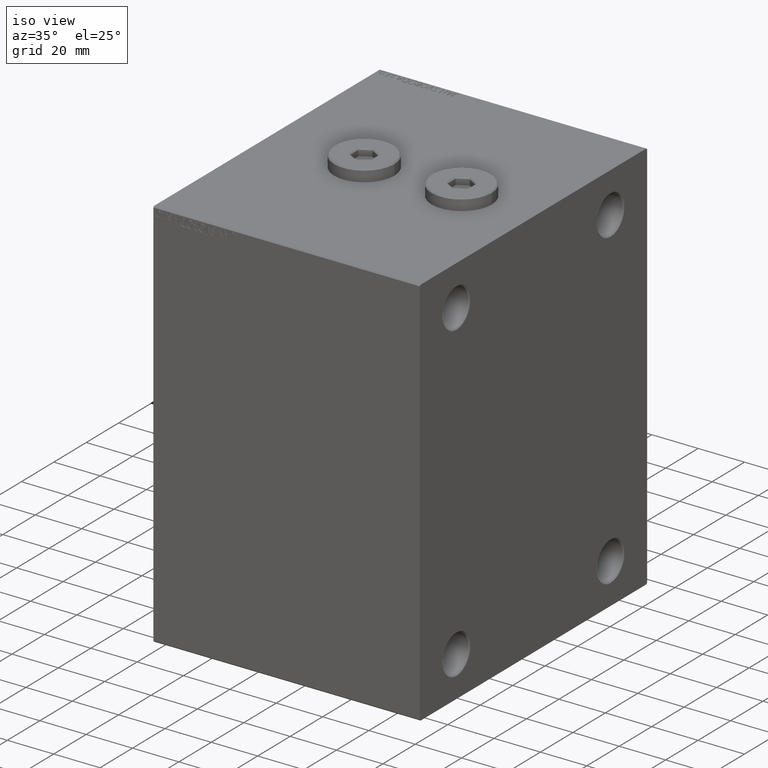
[diagram: clean part render]
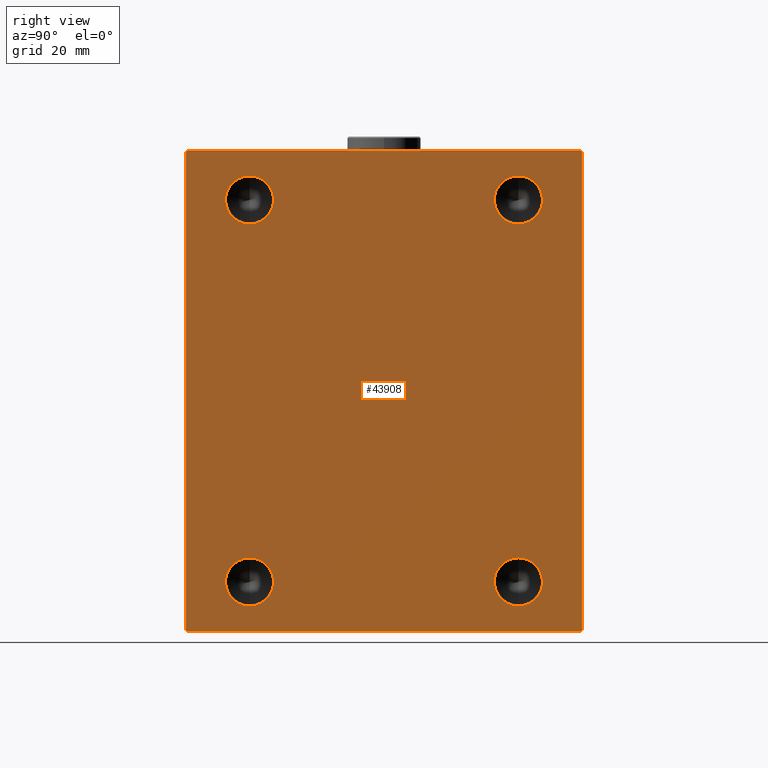
[diagram: tour spotlight — one face highlighted and labeled with its STEP entity id]
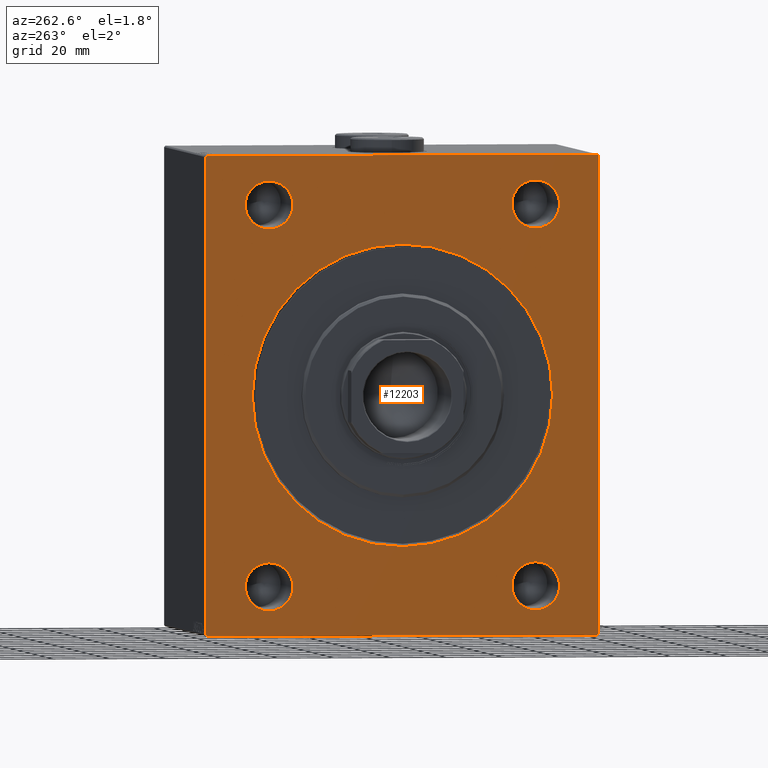
[diagram: tour spotlight — one face highlighted and labeled with its STEP entity id]
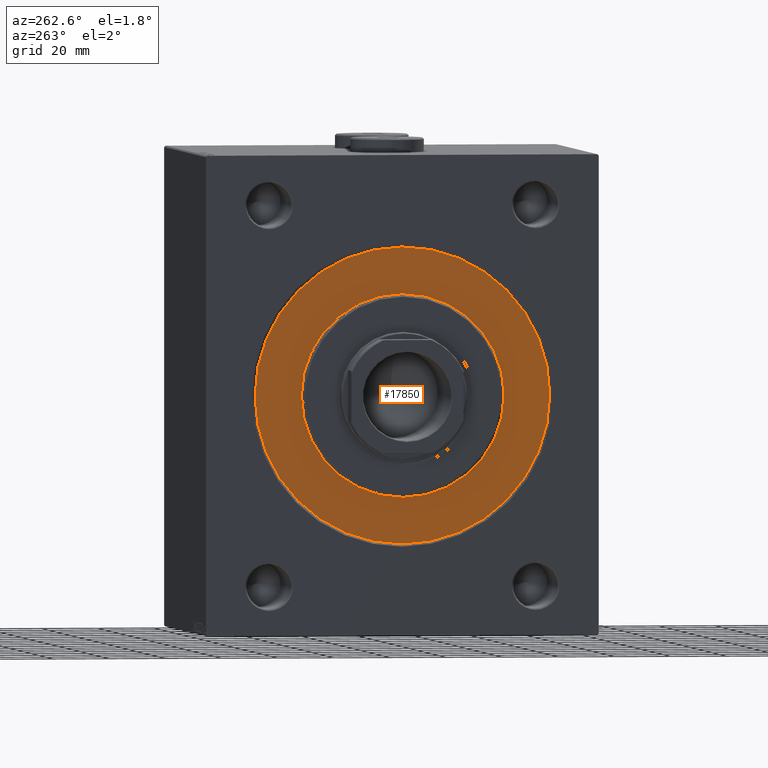
[diagram: tour spotlight — one face highlighted and labeled with its STEP entity id]
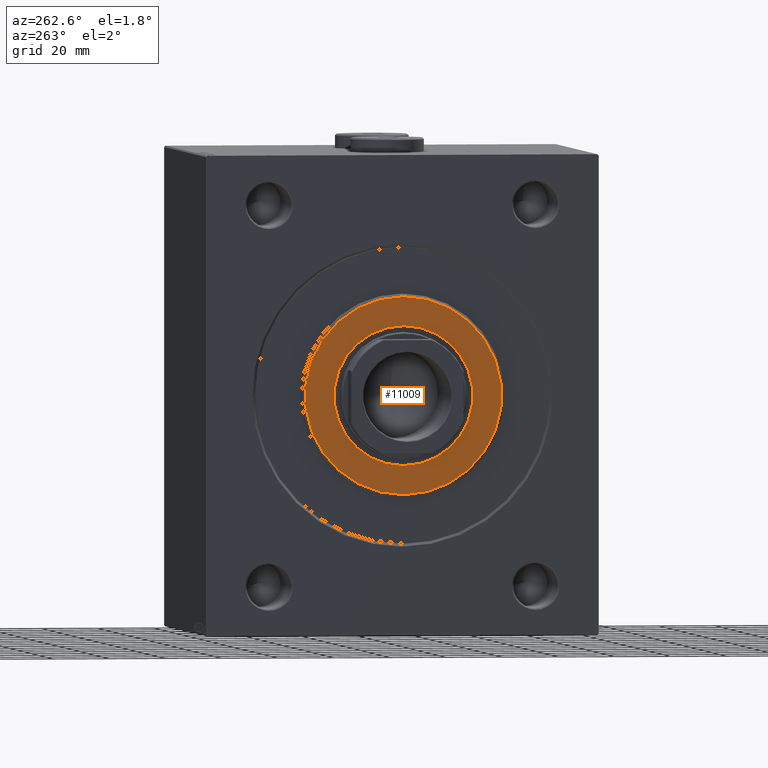
[diagram: tour spotlight — one face highlighted and labeled with its STEP entity id]
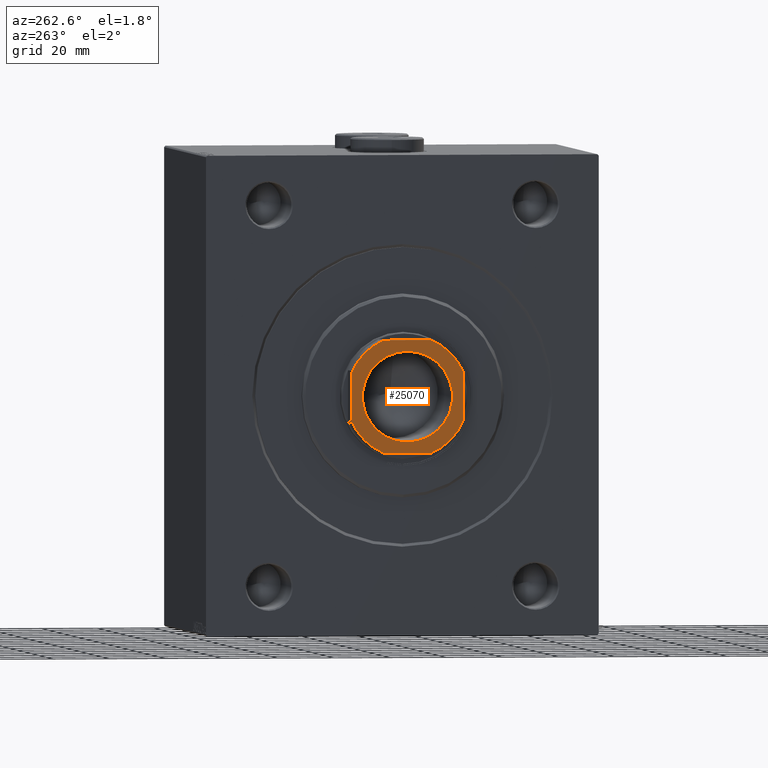
[diagram: tour spotlight — one face highlighted and labeled with its STEP entity id]
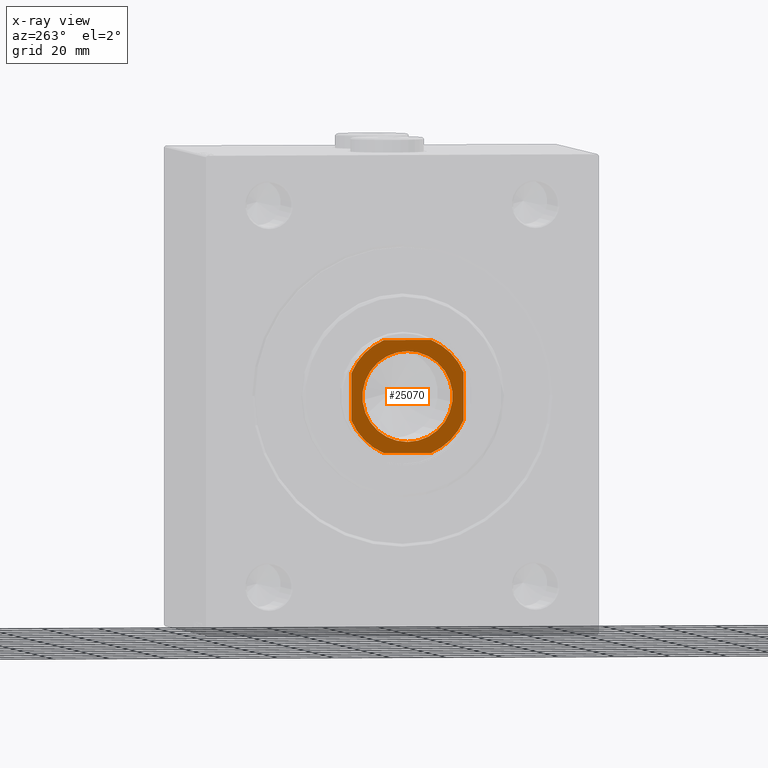
[diagram: x-ray of the same camera — body ghosted, this tour face saturated]
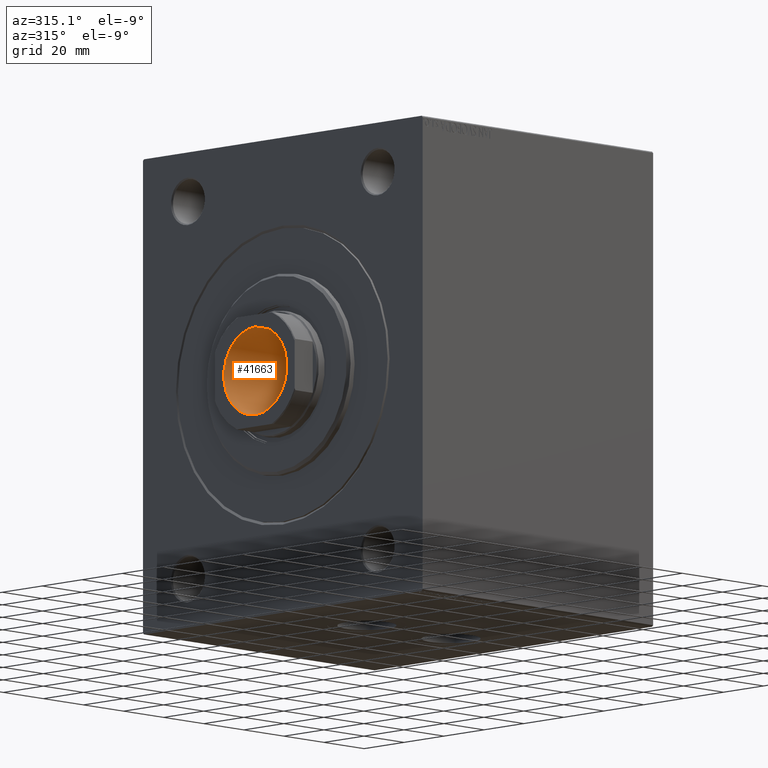
[diagram: tour spotlight — one face highlighted and labeled with its STEP entity id]
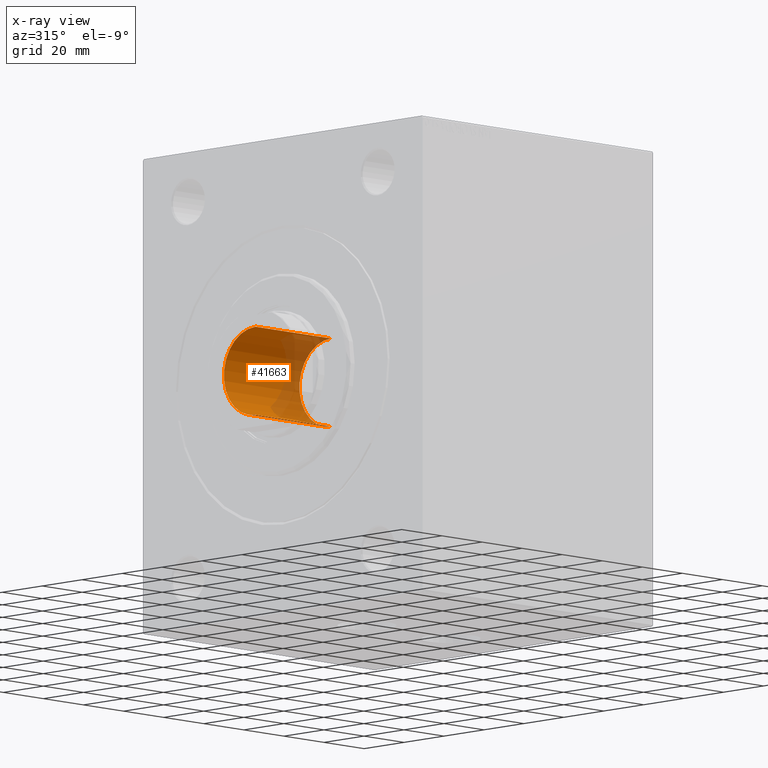
[diagram: x-ray of the same camera — body ghosted, this tour face saturated]
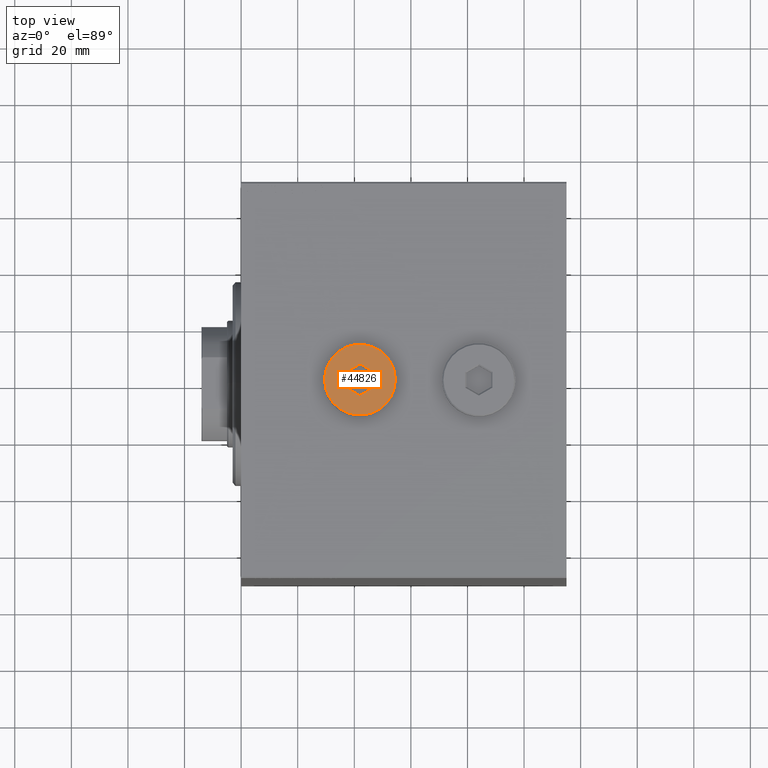
[diagram: tour spotlight — one face highlighted and labeled with its STEP entity id]
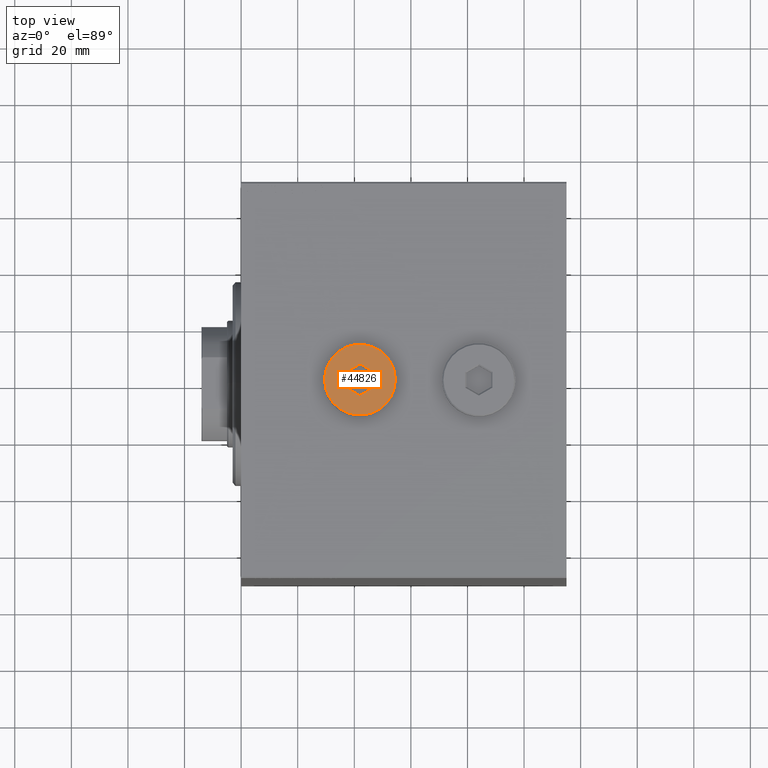
[diagram: tour spotlight — one face highlighted and labeled with its STEP entity id]
A machine part: a face-by-face anatomy tour. The part has 936 B-rep faces; the first image is the clean iso view, then the 8 largest visible faces are spotlighted one at a time (largest first), each with its STEP entity span.

Face 1 — right view, entity #43908. In plain terms, the highlighted planar face has unit normal (1, 0, 0).
Definition (entity closure, byte-faithful):
#71 = DIRECTION ( 'NONE',  ( 0.000000000000000000, 0.000000000000000000, -1.000000000000000000 ) ) ;
#399 = EDGE_CURVE ( 'NONE', #20619, #13724, #18958, .T. ) ;
#414 = AXIS2_PLACEMENT_3D ( 'NONE', #3605, #18101, #17864 ) ;
#762 = DIRECTION ( 'NONE',  ( 0.000000000000000000, -1.000000000000000000, -1.982541115402065110E-16 ) ) ;
#1134 = LINE ( 'NONE', #36326, #10770 ) ;
#1463 = EDGE_CURVE ( 'NONE', #25827, #7201, #33102, .T. ) ;
#1867 = AXIS2_PLACEMENT_3D ( 'NONE', #31315, #31750, #28068 ) ;
#2582 = CARTESIAN_POINT ( 'NONE',  ( 115.0000000000000000, 47.50000000000000000, -76.00000000000008527 ) ) ;
#2927 = LINE ( 'NONE', #10489, #36118 ) ;
#3092 = EDGE_CURVE ( 'NONE', #6429, #4904, #43991, .T. ) ;
#3149 = DIRECTION ( 'NONE',  ( -0.000000000000000000, 0.7071067811865376918, -0.7071067811865574537 ) ) ;
#3605 = CARTESIAN_POINT ( 'NONE',  ( 115.0000000000000000, 47.50000000000000000, -67.50000000000001421 ) ) ;
#3694 = FACE_OUTER_BOUND ( 'NONE', #18508, .T. ) ;
#3725 = CARTESIAN_POINT ( 'NONE',  ( 115.0000000000000000, -47.50000000000000000, 58.99999999999992895 ) ) ;
#3915 = CARTESIAN_POINT ( 'NONE',  ( 115.0000000000000000, 47.50000000000000000, 67.49999999999998579 ) ) ;
#4056 = AXIS2_PLACEMENT_3D ( 'NONE', #24452, #41741, #71 ) ;
#4336 = CARTESIAN_POINT ( 'NONE',  ( 115.0000000000000000, -47.50000000000000000, 67.49999999999998579 ) ) ;
#4384 = DIRECTION ( 'NONE',  ( 0.000000000000000000, 0.000000000000000000, -1.000000000000000000 ) ) ;
#4858 = ORIENTED_EDGE ( 'NONE', *, *, #11939, .F. ) ;
#4904 = VERTEX_POINT ( 'NONE', #3725 ) ;
#5462 = CARTESIAN_POINT ( 'NONE',  ( 115.0000000000000000, 77.25000000000099476, 77.24999999999884892 ) ) ;
#6336 = LINE ( 'NONE', #20367, #9171 ) ;
#6429 = VERTEX_POINT ( 'NONE', #27233 ) ;
#7002 = CIRCLE ( 'NONE', #26856, 8.500000000000063949 ) ;
#7150 = FACE_BOUND ( 'NONE', #32988, .T. ) ;
#7201 = VERTEX_POINT ( 'NONE', #12992 ) ;
#7851 = ORIENTED_EDGE ( 'NONE', *, *, #15806, .T. ) ;
#8686 = VECTOR ( 'NONE', #40012, 1000.000000000000000 ) ;
#8942 = CARTESIAN_POINT ( 'NONE',  ( 115.0000000000000000, -70.00000000000000000, -85.00000000000000000 ) ) ;
#8974 = ORIENTED_EDGE ( 'NONE', *, *, #15481, .T. ) ;
#9171 = VECTOR ( 'NONE', #34402, 1000.000000000000000 ) ;
#9202 = CIRCLE ( 'NONE', #42282, 8.500000000000063949 ) ;
#9763 = ORIENTED_EDGE ( 'NONE', *, *, #27106, .F. ) ;
#9957 = VERTEX_POINT ( 'NONE', #15587 ) ;
#10489 = CARTESIAN_POINT ( 'NONE',  ( 115.0000000000000000, -77.25000000000098055, -77.24999999999883471 ) ) ;
#10592 = CARTESIAN_POINT ( 'NONE',  ( 115.0000000000000000, 47.50000000000000000, 67.49999999999998579 ) ) ;
#10691 = EDGE_CURVE ( 'NONE', #11544, #41121, #31919, .T. ) ;
#10770 = VECTOR ( 'NONE', #18850, 1000.000000000000000 ) ;
#11544 = VERTEX_POINT ( 'NONE', #38611 ) ;
#11574 = CARTESIAN_POINT ( 'NONE',  ( 115.0000000000000000, 70.00000000000000000, 85.00000000000001421 ) ) ;
#11834 = DIRECTION ( 'NONE',  ( 0.000000000000000000, 0.000000000000000000, -1.000000000000000000 ) ) ;
#11939 = EDGE_CURVE ( 'NONE', #12306, #36172, #34544, .T. ) ;
#12306 = VERTEX_POINT ( 'NONE', #33357 ) ;
#12439 = EDGE_CURVE ( 'NONE', #14558, #9957, #26186, .T. ) ;
#12992 = CARTESIAN_POINT ( 'NONE',  ( 115.0000000000000000, 69.50000000000000000, -85.00000000000000000 ) ) ;
#13724 = VERTEX_POINT ( 'NONE', #33203 ) ;
#14158 = VERTEX_POINT ( 'NONE', #37708 ) ;
#14558 = VERTEX_POINT ( 'NONE', #36749 ) ;
#14975 = ORIENTED_EDGE ( 'NONE', *, *, #10691, .T. ) ;
#15481 = EDGE_CURVE ( 'NONE', #43566, #25827, #2927, .T. ) ;
#15587 = CARTESIAN_POINT ( 'NONE',  ( 115.0000000000000000, 69.50000000000002842, 85.00000000000001421 ) ) ;
#15588 = CARTESIAN_POINT ( 'NONE',  ( 115.0000000000000000, 77.24999999999904787, -77.25000000000119371 ) ) ;
#15806 = EDGE_CURVE ( 'NONE', #9957, #11544, #43343, .T. ) ;
#16628 = ORIENTED_EDGE ( 'NONE', *, *, #3092, .F. ) ;
#17265 = VECTOR ( 'NONE', #36514, 999.9999999999998863 ) ;
#17276 = DIRECTION ( 'NONE',  ( 1.000000000000000000, -0.000000000000000000, -0.000000000000000000 ) ) ;
#17727 = PLANE ( 'NONE',  #1867 ) ;
#17864 = DIRECTION ( 'NONE',  ( 0.000000000000000000, 0.000000000000000000, -1.000000000000000000 ) ) ;
#18015 = CIRCLE ( 'NONE', #4056, 8.500000000000063949 ) ;
#18101 = DIRECTION ( 'NONE',  ( 1.000000000000000000, -0.000000000000000000, -0.000000000000000000 ) ) ;
#18166 = CARTESIAN_POINT ( 'NONE',  ( 115.0000000000000000, -47.50000000000000000, -76.00000000000008527 ) ) ;
#18508 = EDGE_LOOP ( 'NONE', ( #7851, #14975, #31027, #8974, #39689, #35897, #42612, #23755 ) ) ;
#18850 = DIRECTION ( 'NONE',  ( 0.000000000000000000, -8.163404592832031500E-17, 1.000000000000000000 ) ) ;
#18920 = EDGE_CURVE ( 'NONE', #19659, #14558, #1134, .T. ) ;
#18958 = CIRCLE ( 'NONE', #33633, 8.500000000000063949 ) ;
#19382 = EDGE_LOOP ( 'NONE', ( #37054, #32246 ) ) ;
#19609 = EDGE_LOOP ( 'NONE', ( #26034, #33668 ) ) ;
#19659 = VERTEX_POINT ( 'NONE', #30371 ) ;
#19731 = DIRECTION ( 'NONE',  ( -0.000000000000000000, -0.7071067811865376918, 0.7071067811865573427 ) ) ;
#20254 = CIRCLE ( 'NONE', #414, 8.500000000000063949 ) ;
#20367 = CARTESIAN_POINT ( 'NONE',  ( 115.0000000000000000, -70.00000000000000000, 84.99999999999998579 ) ) ;
#20587 = AXIS2_PLACEMENT_3D ( 'NONE', #10592, #41906, #28072 ) ;
#20619 = VERTEX_POINT ( 'NONE', #18166 ) ;
#20777 = CARTESIAN_POINT ( 'NONE',  ( 115.0000000000000000, -70.00000000000000000, -84.49999999999998579 ) ) ;
#22045 = DIRECTION ( 'NONE',  ( 0.000000000000000000, 0.000000000000000000, -1.000000000000000000 ) ) ;
#22315 = DIRECTION ( 'NONE',  ( 1.000000000000000000, -0.000000000000000000, -0.000000000000000000 ) ) ;
#23499 = CARTESIAN_POINT ( 'NONE',  ( 115.0000000000000000, -47.50000000000000000, 67.49999999999998579 ) ) ;
#23755 = ORIENTED_EDGE ( 'NONE', *, *, #12439, .T. ) ;
#24452 = CARTESIAN_POINT ( 'NONE',  ( 115.0000000000000000, 47.50000000000000000, -67.50000000000001421 ) ) ;
#25827 = VERTEX_POINT ( 'NONE', #26579 ) ;
#25854 = CARTESIAN_POINT ( 'NONE',  ( 115.0000000000000000, 47.50000000000000000, 58.99999999999992895 ) ) ;
#26034 = ORIENTED_EDGE ( 'NONE', *, *, #31827, .F. ) ;
#26186 = LINE ( 'NONE', #5462, #30173 ) ;
#26389 = LINE ( 'NONE', #15588, #17265 ) ;
#26579 = CARTESIAN_POINT ( 'NONE',  ( 115.0000000000000000, -69.50000000000000000, -85.00000000000000000 ) ) ;
#26657 = EDGE_CURVE ( 'NONE', #41121, #43566, #6336, .T. ) ;
#26856 = AXIS2_PLACEMENT_3D ( 'NONE', #3915, #22315, #4384 ) ;
#27106 = EDGE_CURVE ( 'NONE', #4904, #6429, #9202, .T. ) ;
#27233 = CARTESIAN_POINT ( 'NONE',  ( 115.0000000000000000, -47.50000000000000000, 76.00000000000005684 ) ) ;
#27805 = DIRECTION ( 'NONE',  ( 1.000000000000000000, -0.000000000000000000, -0.000000000000000000 ) ) ;
#28068 = DIRECTION ( 'NONE',  ( 0.000000000000000000, 0.000000000000000000, -1.000000000000000000 ) ) ;
#28072 = DIRECTION ( 'NONE',  ( 0.000000000000000000, 0.000000000000000000, -1.000000000000000000 ) ) ;
#28323 = CIRCLE ( 'NONE', #34942, 8.500000000000063949 ) ;
#28535 = FACE_BOUND ( 'NONE', #44684, .T. ) ;
#28565 = AXIS2_PLACEMENT_3D ( 'NONE', #23499, #17276, #37758 ) ;
#28764 = VERTEX_POINT ( 'NONE', #2582 ) ;
#28854 = CARTESIAN_POINT ( 'NONE',  ( 115.0000000000000000, -47.50000000000000000, -67.50000000000001421 ) ) ;
#29156 = DIRECTION ( 'NONE',  ( 0.000000000000000000, -0.7071067811865474617, -0.7071067811865474617 ) ) ;
#30173 = VECTOR ( 'NONE', #19731, 1000.000000000000114 ) ;
#30371 = CARTESIAN_POINT ( 'NONE',  ( 115.0000000000000000, 70.00000000000001421, -84.50000000000000000 ) ) ;
#31027 = ORIENTED_EDGE ( 'NONE', *, *, #26657, .T. ) ;
#31087 = FACE_BOUND ( 'NONE', #19382, .T. ) ;
#31264 = DIRECTION ( 'NONE',  ( 0.000000000000000000, 0.000000000000000000, -1.000000000000000000 ) ) ;
#31315 = CARTESIAN_POINT ( 'NONE',  ( 115.0000000000000000, 0.000000000000000000, 0.000000000000000000 ) ) ;
#31750 = DIRECTION ( 'NONE',  ( 1.000000000000000000, 0.000000000000000000, 0.000000000000000000 ) ) ;
#31827 = EDGE_CURVE ( 'NONE', #13724, #20619, #28323, .T. ) ;
#31919 = LINE ( 'NONE', #36289, #43372 ) ;
#32246 = ORIENTED_EDGE ( 'NONE', *, *, #43440, .F. ) ;
#32988 = EDGE_LOOP ( 'NONE', ( #4858, #43028 ) ) ;
#33102 = LINE ( 'NONE', #8942, #8686 ) ;
#33203 = CARTESIAN_POINT ( 'NONE',  ( 115.0000000000000000, -47.50000000000000000, -58.99999999999995737 ) ) ;
#33357 = CARTESIAN_POINT ( 'NONE',  ( 115.0000000000000000, 47.50000000000000000, 76.00000000000005684 ) ) ;
#33633 = AXIS2_PLACEMENT_3D ( 'NONE', #28854, #36680, #11834 ) ;
#33668 = ORIENTED_EDGE ( 'NONE', *, *, #399, .F. ) ;
#33724 = CARTESIAN_POINT ( 'NONE',  ( 115.0000000000000000, -70.00000000000000000, 84.49999999999995737 ) ) ;
#34402 = DIRECTION ( 'NONE',  ( 0.000000000000000000, 0.000000000000000000, -1.000000000000000000 ) ) ;
#34544 = CIRCLE ( 'NONE', #20587, 8.500000000000063949 ) ;
#34938 = CARTESIAN_POINT ( 'NONE',  ( 115.0000000000000000, -47.50000000000000000, -67.50000000000001421 ) ) ;
#34942 = AXIS2_PLACEMENT_3D ( 'NONE', #34938, #27805, #31264 ) ;
#35897 = ORIENTED_EDGE ( 'NONE', *, *, #42403, .T. ) ;
#36118 = VECTOR ( 'NONE', #3149, 999.9999999999998863 ) ;
#36172 = VERTEX_POINT ( 'NONE', #25854 ) ;
#36289 = CARTESIAN_POINT ( 'NONE',  ( 115.0000000000000000, -77.24999999999997158, 77.24999999999997158 ) ) ;
#36326 = CARTESIAN_POINT ( 'NONE',  ( 115.0000000000000000, 70.00000000000001421, -85.00000000000000000 ) ) ;
#36514 = DIRECTION ( 'NONE',  ( -0.000000000000000000, 0.7071067811865574537, 0.7071067811865376918 ) ) ;
#36680 = DIRECTION ( 'NONE',  ( 1.000000000000000000, -0.000000000000000000, -0.000000000000000000 ) ) ;
#36749 = CARTESIAN_POINT ( 'NONE',  ( 115.0000000000000000, 70.00000000000000000, 84.50000000000002842 ) ) ;
#37054 = ORIENTED_EDGE ( 'NONE', *, *, #39930, .F. ) ;
#37708 = CARTESIAN_POINT ( 'NONE',  ( 115.0000000000000000, 47.50000000000000000, -58.99999999999995737 ) ) ;
#37758 = DIRECTION ( 'NONE',  ( 0.000000000000000000, 0.000000000000000000, -1.000000000000000000 ) ) ;
#38611 = CARTESIAN_POINT ( 'NONE',  ( 115.0000000000000000, -69.49999999999997158, 84.99999999999998579 ) ) ;
#38843 = DIRECTION ( 'NONE',  ( 1.000000000000000000, -0.000000000000000000, -0.000000000000000000 ) ) ;
#39689 = ORIENTED_EDGE ( 'NONE', *, *, #1463, .T. ) ;
#39930 = EDGE_CURVE ( 'NONE', #14158, #28764, #20254, .T. ) ;
#40012 = DIRECTION ( 'NONE',  ( 0.000000000000000000, 1.000000000000000000, 0.000000000000000000 ) ) ;
#41121 = VERTEX_POINT ( 'NONE', #33724 ) ;
#41741 = DIRECTION ( 'NONE',  ( 1.000000000000000000, -0.000000000000000000, -0.000000000000000000 ) ) ;
#41901 = FACE_BOUND ( 'NONE', #19609, .T. ) ;
#41906 = DIRECTION ( 'NONE',  ( 1.000000000000000000, -0.000000000000000000, -0.000000000000000000 ) ) ;
#42282 = AXIS2_PLACEMENT_3D ( 'NONE', #4336, #38843, #22045 ) ;
#42403 = EDGE_CURVE ( 'NONE', #7201, #19659, #26389, .T. ) ;
#42612 = ORIENTED_EDGE ( 'NONE', *, *, #18920, .T. ) ;
#42990 = EDGE_CURVE ( 'NONE', #36172, #12306, #7002, .T. ) ;
#43028 = ORIENTED_EDGE ( 'NONE', *, *, #42990, .F. ) ;
#43343 = LINE ( 'NONE', #11574, #44211 ) ;
#43372 = VECTOR ( 'NONE', #29156, 1000.000000000000114 ) ;
#43440 = EDGE_CURVE ( 'NONE', #28764, #14158, #18015, .T. ) ;
#43566 = VERTEX_POINT ( 'NONE', #20777 ) ;
#43908 = ADVANCED_FACE ( 'NONE', ( #7150, #28535, #41901, #31087, #3694 ), #17727, .T. ) ;
#43991 = CIRCLE ( 'NONE', #28565, 8.500000000000063949 ) ;
#44211 = VECTOR ( 'NONE', #762, 1000.000000000000000 ) ;
#44684 = EDGE_LOOP ( 'NONE', ( #16628, #9763 ) ) ;

Face 2 — auxiliary view, entity #12203. In plain terms, the highlighted planar face has unit normal (1, 0, 0).
Definition (entity closure, byte-faithful):
#47 = AXIS2_PLACEMENT_3D ( 'NONE', #40274, #12651, #12881 ) ;
#111 = CARTESIAN_POINT ( 'NONE',  ( 0.000000000000000000, -47.50000000000000000, -67.50000000000001421 ) ) ;
#148 = DIRECTION ( 'NONE',  ( 1.000000000000000000, 0.000000000000000000, 0.000000000000000000 ) ) ;
#339 = DIRECTION ( 'NONE',  ( 0.000000000000000000, 0.000000000000000000, -1.000000000000000000 ) ) ;
#499 = CARTESIAN_POINT ( 'NONE',  ( 0.000000000000000000, 0.000000000000000000, 0.000000000000000000 ) ) ;
#825 = CARTESIAN_POINT ( 'NONE',  ( 0.000000000000000000, 6.551860375438343048E-15, -53.50000000000002842 ) ) ;
#1109 = EDGE_CURVE ( 'NONE', #12670, #35089, #1329, .T. ) ;
#1329 = CIRCLE ( 'NONE', #35858, 53.50000000000002842 ) ;
#1421 = DIRECTION ( 'NONE',  ( 1.000000000000000000, 0.000000000000000000, 0.000000000000000000 ) ) ;
#1780 = DIRECTION ( 'NONE',  ( 1.000000000000000000, 0.000000000000000000, 0.000000000000000000 ) ) ;
#2206 = CIRCLE ( 'NONE', #23415, 8.500000000000063949 ) ;
#2304 = FACE_BOUND ( 'NONE', #31112, .T. ) ;
#2462 = EDGE_CURVE ( 'NONE', #8406, #8399, #6507, .T. ) ;
#2637 = EDGE_LOOP ( 'NONE', ( #23333, #20501 ) ) ;
#2670 = CARTESIAN_POINT ( 'NONE',  ( 0.000000000000000000, -47.50000000000000000, -67.50000000000001421 ) ) ;
#2697 = EDGE_CURVE ( 'NONE', #15122, #11169, #26101, .T. ) ;
#2873 = CIRCLE ( 'NONE', #24137, 8.500000000000063949 ) ;
#2987 = CARTESIAN_POINT ( 'NONE',  ( 0.000000000000000000, -47.50000000000000000, -58.99999999999995737 ) ) ;
#3148 = EDGE_CURVE ( 'NONE', #42032, #18403, #2873, .T. ) ;
#3191 = ORIENTED_EDGE ( 'NONE', *, *, #2462, .T. ) ;
#3200 = DIRECTION ( 'NONE',  ( 0.000000000000000000, 0.000000000000000000, -1.000000000000000000 ) ) ;
#3334 = DIRECTION ( 'NONE',  ( 0.000000000000000000, 0.000000000000000000, -1.000000000000000000 ) ) ;
#3399 = DIRECTION ( 'NONE',  ( 0.000000000000000000, -0.7071067811865574537, -0.7071067811865376918 ) ) ;
#3719 = ORIENTED_EDGE ( 'NONE', *, *, #17235, .T. ) ;
#4756 = VERTEX_POINT ( 'NONE', #43581 ) ;
#4909 = EDGE_LOOP ( 'NONE', ( #3719, #15930 ) ) ;
#5287 = CARTESIAN_POINT ( 'NONE',  ( 0.000000000000000000, -70.00000000000000000, 84.99999999999998579 ) ) ;
#6376 = ORIENTED_EDGE ( 'NONE', *, *, #40843, .T. ) ;
#6507 = CIRCLE ( 'NONE', #9476, 8.500000000000063949 ) ;
#6562 = DIRECTION ( 'NONE',  ( 1.000000000000000000, 0.000000000000000000, 0.000000000000000000 ) ) ;
#6893 = EDGE_CURVE ( 'NONE', #17883, #36237, #2206, .T. ) ;
#7883 = EDGE_CURVE ( 'NONE', #41217, #30607, #8917, .T. ) ;
#8399 = VERTEX_POINT ( 'NONE', #2987 ) ;
#8406 = VERTEX_POINT ( 'NONE', #44638 ) ;
#8839 = CARTESIAN_POINT ( 'NONE',  ( 0.000000000000000000, -69.50000000000000000, -85.00000000000000000 ) ) ;
#8917 = LINE ( 'NONE', #40900, #21235 ) ;
#8958 = DIRECTION ( 'NONE',  ( 1.000000000000000000, 0.000000000000000000, 0.000000000000000000 ) ) ;
#9266 = CIRCLE ( 'NONE', #37179, 8.500000000000063949 ) ;
#9476 = AXIS2_PLACEMENT_3D ( 'NONE', #111, #11380, #339 ) ;
#9480 = DIRECTION ( 'NONE',  ( 0.000000000000000000, 0.000000000000000000, -1.000000000000000000 ) ) ;
#9894 = DIRECTION ( 'NONE',  ( 1.000000000000000000, 0.000000000000000000, 0.000000000000000000 ) ) ;
#9932 = EDGE_CURVE ( 'NONE', #36237, #17883, #30111, .T. ) ;
#10396 = CIRCLE ( 'NONE', #42768, 8.500000000000063949 ) ;
#10625 = EDGE_CURVE ( 'NONE', #32346, #29758, #31691, .T. ) ;
#10967 = EDGE_CURVE ( 'NONE', #22398, #30607, #36010, .T. ) ;
#11169 = VERTEX_POINT ( 'NONE', #39635 ) ;
#11380 = DIRECTION ( 'NONE',  ( 1.000000000000000000, 0.000000000000000000, 0.000000000000000000 ) ) ;
#11454 = VECTOR ( 'NONE', #3399, 999.9999999999998863 ) ;
#11815 = VECTOR ( 'NONE', #19327, 1000.000000000000000 ) ;
#12014 = VECTOR ( 'NONE', #17867, 1000.000000000000114 ) ;
#12168 = CARTESIAN_POINT ( 'NONE',  ( 0.000000000000000000, 0.000000000000000000, 53.50000000000002842 ) ) ;
#12203 = ADVANCED_FACE ( 'NONE', ( #43736, #30133, #12430, #2304, #23232, #26006 ), #37269, .F. ) ;
#12259 = EDGE_CURVE ( 'NONE', #22398, #33333, #40494, .T. ) ;
#12430 = FACE_BOUND ( 'NONE', #35282, .T. ) ;
#12651 = DIRECTION ( 'NONE',  ( 1.000000000000000000, 0.000000000000000000, 0.000000000000000000 ) ) ;
#12670 = VERTEX_POINT ( 'NONE', #825 ) ;
#12828 = CARTESIAN_POINT ( 'NONE',  ( 0.000000000000000000, -70.00000000000000000, -84.49999999999998579 ) ) ;
#12881 = DIRECTION ( 'NONE',  ( 0.000000000000000000, 0.000000000000000000, -1.000000000000000000 ) ) ;
#13150 = EDGE_LOOP ( 'NONE', ( #17895, #3191 ) ) ;
#14054 = DIRECTION ( 'NONE',  ( 0.000000000000000000, 0.000000000000000000, -1.000000000000000000 ) ) ;
#14963 = EDGE_CURVE ( 'NONE', #31628, #4756, #10396, .T. ) ;
#15122 = VERTEX_POINT ( 'NONE', #17899 ) ;
#15134 = ORIENTED_EDGE ( 'NONE', *, *, #10625, .F. ) ;
#15438 = AXIS2_PLACEMENT_3D ( 'NONE', #22704, #1780, #19037 ) ;
#15682 = AXIS2_PLACEMENT_3D ( 'NONE', #41417, #9894, #23920 ) ;
#15930 = ORIENTED_EDGE ( 'NONE', *, *, #1109, .T. ) ;
#17235 = EDGE_CURVE ( 'NONE', #35089, #12670, #37720, .T. ) ;
#17648 = CARTESIAN_POINT ( 'NONE',  ( 0.000000000000000000, 70.00000000000001421, -84.50000000000000000 ) ) ;
#17867 = DIRECTION ( 'NONE',  ( -0.000000000000000000, 0.7071067811865376918, -0.7071067811865573427 ) ) ;
#17883 = VERTEX_POINT ( 'NONE', #32691 ) ;
#17895 = ORIENTED_EDGE ( 'NONE', *, *, #44862, .T. ) ;
#17899 = CARTESIAN_POINT ( 'NONE',  ( 0.000000000000000000, -69.50000000000000000, -85.00000000000000000 ) ) ;
#18363 = VECTOR ( 'NONE', #44226, 1000.000000000000000 ) ;
#18403 = VERTEX_POINT ( 'NONE', #18549 ) ;
#18425 = ORIENTED_EDGE ( 'NONE', *, *, #3148, .T. ) ;
#18549 = CARTESIAN_POINT ( 'NONE',  ( 0.000000000000000000, 47.50000000000000000, 58.99999999999992895 ) ) ;
#19014 = ORIENTED_EDGE ( 'NONE', *, *, #2697, .F. ) ;
#19037 = DIRECTION ( 'NONE',  ( 0.000000000000000000, 0.000000000000000000, -1.000000000000000000 ) ) ;
#19327 = DIRECTION ( 'NONE',  ( 0.000000000000000000, 0.000000000000000000, -1.000000000000000000 ) ) ;
#19412 = DIRECTION ( 'NONE',  ( -0.000000000000000000, -0.7071067811865376918, 0.7071067811865574537 ) ) ;
#19435 = DIRECTION ( 'NONE',  ( -0.000000000000000000, 0.7071067811865474617, 0.7071067811865474617 ) ) ;
#19842 = ORIENTED_EDGE ( 'NONE', *, *, #12259, .F. ) ;
#20498 = DIRECTION ( 'NONE',  ( 1.000000000000000000, 0.000000000000000000, 0.000000000000000000 ) ) ;
#20501 = ORIENTED_EDGE ( 'NONE', *, *, #6893, .T. ) ;
#20729 = CARTESIAN_POINT ( 'NONE',  ( 0.000000000000000000, 47.50000000000000000, 67.49999999999998579 ) ) ;
#20995 = AXIS2_PLACEMENT_3D ( 'NONE', #34899, #148, #31224 ) ;
#21117 = CARTESIAN_POINT ( 'NONE',  ( 0.000000000000000000, 70.00000000000001421, -85.00000000000000000 ) ) ;
#21235 = VECTOR ( 'NONE', #30761, 1000.000000000000000 ) ;
#21862 = CARTESIAN_POINT ( 'NONE',  ( 0.000000000000000000, -47.50000000000000000, 58.99999999999992895 ) ) ;
#22132 = CARTESIAN_POINT ( 'NONE',  ( 0.000000000000000000, 70.00000000000001421, -84.50000000000000000 ) ) ;
#22135 = ORIENTED_EDGE ( 'NONE', *, *, #7883, .F. ) ;
#22398 = VERTEX_POINT ( 'NONE', #44134 ) ;
#22704 = CARTESIAN_POINT ( 'NONE',  ( 0.000000000000000000, 47.50000000000000000, -67.50000000000001421 ) ) ;
#22760 = ORIENTED_EDGE ( 'NONE', *, *, #37399, .T. ) ;
#23143 = CARTESIAN_POINT ( 'NONE',  ( 0.000000000000000000, 69.50000000000002842, 85.00000000000001421 ) ) ;
#23232 = FACE_BOUND ( 'NONE', #2637, .T. ) ;
#23333 = ORIENTED_EDGE ( 'NONE', *, *, #9932, .T. ) ;
#23415 = AXIS2_PLACEMENT_3D ( 'NONE', #44394, #8958, #34024 ) ;
#23920 = DIRECTION ( 'NONE',  ( 0.000000000000000000, 0.000000000000000000, -1.000000000000000000 ) ) ;
#24137 = AXIS2_PLACEMENT_3D ( 'NONE', #37308, #20498, #9480 ) ;
#24866 = DIRECTION ( 'NONE',  ( 1.000000000000000000, 0.000000000000000000, 0.000000000000000000 ) ) ;
#26006 = FACE_OUTER_BOUND ( 'NONE', #42173, .T. ) ;
#26101 = LINE ( 'NONE', #29770, #41069 ) ;
#26176 = ORIENTED_EDGE ( 'NONE', *, *, #44676, .T. ) ;
#28018 = CARTESIAN_POINT ( 'NONE',  ( 0.000000000000000000, -47.50000000000000000, 67.49999999999998579 ) ) ;
#28310 = CIRCLE ( 'NONE', #40096, 8.500000000000063949 ) ;
#28350 = CARTESIAN_POINT ( 'NONE',  ( 0.000000000000000000, -69.49999999999997158, 84.99999999999998579 ) ) ;
#29758 = VERTEX_POINT ( 'NONE', #39133 ) ;
#29765 = ORIENTED_EDGE ( 'NONE', *, *, #14963, .T. ) ;
#29770 = CARTESIAN_POINT ( 'NONE',  ( 0.000000000000000000, -70.00000000000000000, -85.00000000000000000 ) ) ;
#30111 = CIRCLE ( 'NONE', #15438, 8.500000000000063949 ) ;
#30133 = FACE_BOUND ( 'NONE', #13150, .T. ) ;
#30607 = VERTEX_POINT ( 'NONE', #28350 ) ;
#30761 = DIRECTION ( 'NONE',  ( 0.000000000000000000, -1.000000000000000000, -1.982541115402065110E-16 ) ) ;
#30778 = ORIENTED_EDGE ( 'NONE', *, *, #35804, .T. ) ;
#31112 = EDGE_LOOP ( 'NONE', ( #18425, #44946 ) ) ;
#31224 = DIRECTION ( 'NONE',  ( 0.000000000000000000, 0.000000000000000000, -1.000000000000000000 ) ) ;
#31448 = LINE ( 'NONE', #45482, #12014 ) ;
#31628 = VERTEX_POINT ( 'NONE', #21862 ) ;
#31691 = LINE ( 'NONE', #21117, #18363 ) ;
#32346 = VERTEX_POINT ( 'NONE', #22132 ) ;
#32691 = CARTESIAN_POINT ( 'NONE',  ( 0.000000000000000000, 47.50000000000000000, -76.00000000000008527 ) ) ;
#32896 = EDGE_CURVE ( 'NONE', #18403, #42032, #9266, .T. ) ;
#32981 = CARTESIAN_POINT ( 'NONE',  ( 0.000000000000000000, 47.50000000000000000, -58.99999999999995737 ) ) ;
#33333 = VERTEX_POINT ( 'NONE', #12828 ) ;
#33486 = CIRCLE ( 'NONE', #20995, 8.500000000000063949 ) ;
#33898 = LINE ( 'NONE', #8839, #42967 ) ;
#34024 = DIRECTION ( 'NONE',  ( 0.000000000000000000, 0.000000000000000000, -1.000000000000000000 ) ) ;
#34899 = CARTESIAN_POINT ( 'NONE',  ( 0.000000000000000000, -47.50000000000000000, 67.49999999999998579 ) ) ;
#35089 = VERTEX_POINT ( 'NONE', #12168 ) ;
#35282 = EDGE_LOOP ( 'NONE', ( #26176, #29765 ) ) ;
#35354 = LINE ( 'NONE', #17648, #11454 ) ;
#35804 = EDGE_CURVE ( 'NONE', #41217, #29758, #31448, .T. ) ;
#35858 = AXIS2_PLACEMENT_3D ( 'NONE', #499, #1421, #40067 ) ;
#36010 = LINE ( 'NONE', #37374, #37511 ) ;
#36237 = VERTEX_POINT ( 'NONE', #32981 ) ;
#37179 = AXIS2_PLACEMENT_3D ( 'NONE', #20729, #24866, #14054 ) ;
#37269 = PLANE ( 'NONE',  #47 ) ;
#37308 = CARTESIAN_POINT ( 'NONE',  ( 0.000000000000000000, 47.50000000000000000, 67.49999999999998579 ) ) ;
#37374 = CARTESIAN_POINT ( 'NONE',  ( 0.000000000000000000, -70.00000000000000000, 84.49999999999995737 ) ) ;
#37399 = EDGE_CURVE ( 'NONE', #15122, #33333, #33898, .T. ) ;
#37511 = VECTOR ( 'NONE', #19435, 1000.000000000000114 ) ;
#37720 = CIRCLE ( 'NONE', #15682, 53.50000000000002842 ) ;
#39133 = CARTESIAN_POINT ( 'NONE',  ( 0.000000000000000000, 70.00000000000000000, 84.50000000000002842 ) ) ;
#39635 = CARTESIAN_POINT ( 'NONE',  ( 0.000000000000000000, 69.50000000000000000, -85.00000000000000000 ) ) ;
#40067 = DIRECTION ( 'NONE',  ( 0.000000000000000000, 0.000000000000000000, -1.000000000000000000 ) ) ;
#40096 = AXIS2_PLACEMENT_3D ( 'NONE', #2670, #6562, #3334 ) ;
#40274 = CARTESIAN_POINT ( 'NONE',  ( 0.000000000000000000, 0.000000000000000000, 0.000000000000000000 ) ) ;
#40369 = DIRECTION ( 'NONE',  ( 0.000000000000000000, 1.000000000000000000, 0.000000000000000000 ) ) ;
#40494 = LINE ( 'NONE', #5287, #11815 ) ;
#40843 = EDGE_CURVE ( 'NONE', #32346, #11169, #35354, .T. ) ;
#40900 = CARTESIAN_POINT ( 'NONE',  ( 0.000000000000000000, 70.00000000000000000, 85.00000000000001421 ) ) ;
#41069 = VECTOR ( 'NONE', #40369, 1000.000000000000000 ) ;
#41217 = VERTEX_POINT ( 'NONE', #23143 ) ;
#41417 = CARTESIAN_POINT ( 'NONE',  ( 0.000000000000000000, 0.000000000000000000, 0.000000000000000000 ) ) ;
#41943 = CARTESIAN_POINT ( 'NONE',  ( 0.000000000000000000, 47.50000000000000000, 76.00000000000005684 ) ) ;
#42032 = VERTEX_POINT ( 'NONE', #41943 ) ;
#42173 = EDGE_LOOP ( 'NONE', ( #19842, #43532, #22135, #30778, #15134, #6376, #19014, #22760 ) ) ;
#42768 = AXIS2_PLACEMENT_3D ( 'NONE', #28018, #45514, #3200 ) ;
#42967 = VECTOR ( 'NONE', #19412, 999.9999999999998863 ) ;
#43532 = ORIENTED_EDGE ( 'NONE', *, *, #10967, .T. ) ;
#43581 = CARTESIAN_POINT ( 'NONE',  ( 0.000000000000000000, -47.50000000000000000, 76.00000000000005684 ) ) ;
#43736 = FACE_BOUND ( 'NONE', #4909, .T. ) ;
#44134 = CARTESIAN_POINT ( 'NONE',  ( 0.000000000000000000, -70.00000000000000000, 84.49999999999995737 ) ) ;
#44226 = DIRECTION ( 'NONE',  ( 0.000000000000000000, -8.163404592832031500E-17, 1.000000000000000000 ) ) ;
#44394 = CARTESIAN_POINT ( 'NONE',  ( 0.000000000000000000, 47.50000000000000000, -67.50000000000001421 ) ) ;
#44638 = CARTESIAN_POINT ( 'NONE',  ( 0.000000000000000000, -47.50000000000000000, -76.00000000000008527 ) ) ;
#44676 = EDGE_CURVE ( 'NONE', #4756, #31628, #33486, .T. ) ;
#44862 = EDGE_CURVE ( 'NONE', #8399, #8406, #28310, .T. ) ;
#44946 = ORIENTED_EDGE ( 'NONE', *, *, #32896, .T. ) ;
#45482 = CARTESIAN_POINT ( 'NONE',  ( 0.000000000000000000, 69.50000000000002842, 85.00000000000001421 ) ) ;
#45514 = DIRECTION ( 'NONE',  ( 1.000000000000000000, 0.000000000000000000, 0.000000000000000000 ) ) ;

Face 3 — auxiliary view, entity #17850. In plain terms, the highlighted planar face has unit normal (1, -0, -0).
Definition (entity closure, byte-faithful):
#1900 = AXIS2_PLACEMENT_3D ( 'NONE', #10130, #44659, #27608 ) ;
#3761 = ORIENTED_EDGE ( 'NONE', *, *, #24444, .F. ) ;
#3767 = ORIENTED_EDGE ( 'NONE', *, *, #42986, .F. ) ;
#3803 = EDGE_LOOP ( 'NONE', ( #24101, #3761 ) ) ;
#4149 = CARTESIAN_POINT ( 'NONE',  ( 0.000000000000000000, 0.000000000000000000, 0.000000000000000000 ) ) ;
#4629 = DIRECTION ( 'NONE',  ( 0.000000000000000000, 0.000000000000000000, 1.000000000000000000 ) ) ;
#5083 = FACE_OUTER_BOUND ( 'NONE', #3803, .T. ) ;
#5513 = AXIS2_PLACEMENT_3D ( 'NONE', #24563, #42066, #10769 ) ;
#8082 = CARTESIAN_POINT ( 'NONE',  ( 0.000000000000000000, 0.000000000000000000, 0.000000000000000000 ) ) ;
#10130 = CARTESIAN_POINT ( 'NONE',  ( 0.000000000000000000, 0.000000000000000000, 0.000000000000000000 ) ) ;
#10661 = CIRCLE ( 'NONE', #5513, 36.00000000000000000 ) ;
#10769 = DIRECTION ( 'NONE',  ( 0.000000000000000000, 0.000000000000000000, -1.000000000000000000 ) ) ;
#11329 = AXIS2_PLACEMENT_3D ( 'NONE', #40698, #26434, #34012 ) ;
#16314 = EDGE_LOOP ( 'NONE', ( #24333, #3767 ) ) ;
#17850 = ADVANCED_FACE ( 'NONE', ( #29691, #5083 ), #36142, .F. ) ;
#19643 = AXIS2_PLACEMENT_3D ( 'NONE', #8082, #22113, #4629 ) ;
#21691 = CIRCLE ( 'NONE', #32730, 36.00000000000000000 ) ;
#22113 = DIRECTION ( 'NONE',  ( -1.000000000000000000, 0.000000000000000000, 0.000000000000000000 ) ) ;
#24101 = ORIENTED_EDGE ( 'NONE', *, *, #40513, .F. ) ;
#24333 = ORIENTED_EDGE ( 'NONE', *, *, #31100, .F. ) ;
#24444 = EDGE_CURVE ( 'NONE', #25915, #28713, #37046, .T. ) ;
#24563 = CARTESIAN_POINT ( 'NONE',  ( 0.000000000000000000, 0.000000000000000000, 0.000000000000000000 ) ) ;
#25915 = VERTEX_POINT ( 'NONE', #33936 ) ;
#26434 = DIRECTION ( 'NONE',  ( -1.000000000000000000, 0.000000000000000000, 0.000000000000000000 ) ) ;
#27608 = DIRECTION ( 'NONE',  ( 0.000000000000000000, 0.000000000000000000, 1.000000000000000000 ) ) ;
#28529 = DIRECTION ( 'NONE',  ( 0.000000000000000000, 0.000000000000000000, -1.000000000000000000 ) ) ;
#28713 = VERTEX_POINT ( 'NONE', #43339 ) ;
#29691 = FACE_BOUND ( 'NONE', #16314, .T. ) ;
#31100 = EDGE_CURVE ( 'NONE', #45220, #45151, #10661, .T. ) ;
#32417 = CARTESIAN_POINT ( 'NONE',  ( 0.000000000000000000, 4.408728476930470856E-15, -36.00000000000000000 ) ) ;
#32665 = DIRECTION ( 'NONE',  ( 1.000000000000000000, -0.000000000000000000, 0.000000000000000000 ) ) ;
#32730 = AXIS2_PLACEMENT_3D ( 'NONE', #4149, #32665, #28529 ) ;
#33936 = CARTESIAN_POINT ( 'NONE',  ( 0.000000000000000000, 6.429395695523603167E-15, 52.49999999999999289 ) ) ;
#34012 = DIRECTION ( 'NONE',  ( 0.000000000000000000, 0.000000000000000000, 1.000000000000000000 ) ) ;
#36142 = PLANE ( 'NONE',  #19643 ) ;
#36411 = CIRCLE ( 'NONE', #1900, 52.49999999999999289 ) ;
#37046 = CIRCLE ( 'NONE', #11329, 52.49999999999999289 ) ;
#39784 = CARTESIAN_POINT ( 'NONE',  ( 0.000000000000000000, 0.000000000000000000, 36.00000000000000000 ) ) ;
#40513 = EDGE_CURVE ( 'NONE', #28713, #25915, #36411, .T. ) ;
#40698 = CARTESIAN_POINT ( 'NONE',  ( 0.000000000000000000, 0.000000000000000000, 0.000000000000000000 ) ) ;
#42066 = DIRECTION ( 'NONE',  ( 1.000000000000000000, -0.000000000000000000, 0.000000000000000000 ) ) ;
#42986 = EDGE_CURVE ( 'NONE', #45151, #45220, #21691, .T. ) ;
#43339 = CARTESIAN_POINT ( 'NONE',  ( 0.000000000000000000, 0.000000000000000000, -52.49999999999999289 ) ) ;
#44659 = DIRECTION ( 'NONE',  ( -1.000000000000000000, 0.000000000000000000, 0.000000000000000000 ) ) ;
#45151 = VERTEX_POINT ( 'NONE', #32417 ) ;
#45220 = VERTEX_POINT ( 'NONE', #39784 ) ;

Face 4 — auxiliary view, entity #11009. In plain terms, the highlighted planar face has unit normal (-1, 0, 0).
Definition (entity closure, byte-faithful):
#422 = AXIS2_PLACEMENT_3D ( 'NONE', #8977, #20014, #20469 ) ;
#1912 = CIRCLE ( 'NONE', #44558, 35.00000000000001421 ) ;
#1933 = DIRECTION ( 'NONE',  ( 1.000000000000000000, 0.000000000000000000, 0.000000000000000000 ) ) ;
#2406 = DIRECTION ( 'NONE',  ( 1.000000000000000000, -0.000000000000000000, 0.000000000000000000 ) ) ;
#5020 = ORIENTED_EDGE ( 'NONE', *, *, #40118, .F. ) ;
#5360 = EDGE_CURVE ( 'NONE', #16116, #32569, #5845, .T. ) ;
#5845 = CIRCLE ( 'NONE', #13925, 24.75000000000000355 ) ;
#6311 = DIRECTION ( 'NONE',  ( 0.000000000000000000, 0.000000000000000000, -1.000000000000000000 ) ) ;
#6568 = ORIENTED_EDGE ( 'NONE', *, *, #30086, .T. ) ;
#8977 = CARTESIAN_POINT ( 'NONE',  ( 3.000000000000000000, 0.000000000000000000, 0.000000000000000000 ) ) ;
#9222 = CIRCLE ( 'NONE', #18019, 24.75000000000000355 ) ;
#11009 = ADVANCED_FACE ( 'NONE', ( #41740, #27022 ), #21005, .T. ) ;
#11025 = AXIS2_PLACEMENT_3D ( 'NONE', #31372, #2406, #6311 ) ;
#11827 = DIRECTION ( 'NONE',  ( 0.000000000000000000, 0.000000000000000000, -1.000000000000000000 ) ) ;
#13925 = AXIS2_PLACEMENT_3D ( 'NONE', #23082, #1933, #11827 ) ;
#15788 = DIRECTION ( 'NONE',  ( 0.000000000000000000, 0.000000000000000000, -1.000000000000000000 ) ) ;
#16116 = VERTEX_POINT ( 'NONE', #34097 ) ;
#17713 = DIRECTION ( 'NONE',  ( 0.000000000000000000, 0.000000000000000000, -1.000000000000000000 ) ) ;
#18019 = AXIS2_PLACEMENT_3D ( 'NONE', #29124, #40403, #15788 ) ;
#20014 = DIRECTION ( 'NONE',  ( 1.000000000000000000, -0.000000000000000000, 0.000000000000000000 ) ) ;
#20469 = DIRECTION ( 'NONE',  ( 0.000000000000000000, 0.000000000000000000, -1.000000000000000000 ) ) ;
#21005 = PLANE ( 'NONE',  #11025 ) ;
#21164 = CARTESIAN_POINT ( 'NONE',  ( 3.000000000000000000, 0.000000000000000000, 0.000000000000000000 ) ) ;
#21740 = CIRCLE ( 'NONE', #422, 35.00000000000001421 ) ;
#23082 = CARTESIAN_POINT ( 'NONE',  ( 3.000000000000000000, 0.000000000000000000, 0.000000000000000000 ) ) ;
#23344 = CARTESIAN_POINT ( 'NONE',  ( 3.000000000000000000, 3.031000827889699650E-15, 24.75000000000000355 ) ) ;
#23767 = VERTEX_POINT ( 'NONE', #43143 ) ;
#25538 = VERTEX_POINT ( 'NONE', #28602 ) ;
#27022 = FACE_BOUND ( 'NONE', #42420, .T. ) ;
#28602 = CARTESIAN_POINT ( 'NONE',  ( 3.000000000000000000, 4.347496136973104859E-15, -35.00000000000001421 ) ) ;
#29124 = CARTESIAN_POINT ( 'NONE',  ( 3.000000000000000000, 0.000000000000000000, 0.000000000000000000 ) ) ;
#30086 = EDGE_CURVE ( 'NONE', #25538, #23767, #1912, .T. ) ;
#31372 = CARTESIAN_POINT ( 'NONE',  ( 3.000000000000000000, 0.000000000000000000, 0.000000000000000000 ) ) ;
#32569 = VERTEX_POINT ( 'NONE', #23344 ) ;
#32960 = EDGE_LOOP ( 'NONE', ( #43438, #6568 ) ) ;
#33762 = EDGE_CURVE ( 'NONE', #23767, #25538, #21740, .T. ) ;
#34097 = CARTESIAN_POINT ( 'NONE',  ( 3.000000000000000000, 0.000000000000000000, -24.75000000000000355 ) ) ;
#35198 = DIRECTION ( 'NONE',  ( 1.000000000000000000, -0.000000000000000000, 0.000000000000000000 ) ) ;
#36091 = ORIENTED_EDGE ( 'NONE', *, *, #5360, .F. ) ;
#40118 = EDGE_CURVE ( 'NONE', #32569, #16116, #9222, .T. ) ;
#40403 = DIRECTION ( 'NONE',  ( 1.000000000000000000, 0.000000000000000000, 0.000000000000000000 ) ) ;
#41740 = FACE_OUTER_BOUND ( 'NONE', #32960, .T. ) ;
#42420 = EDGE_LOOP ( 'NONE', ( #36091, #5020 ) ) ;
#43143 = CARTESIAN_POINT ( 'NONE',  ( 3.000000000000000000, 0.000000000000000000, 35.00000000000001421 ) ) ;
#43438 = ORIENTED_EDGE ( 'NONE', *, *, #33762, .T. ) ;
#44558 = AXIS2_PLACEMENT_3D ( 'NONE', #21164, #35198, #17713 ) ;

Face 5 — auxiliary view, entity #25070. An x-ray twin of the same camera follows (body ghosted, this face saturated) — the face is partly hidden behind the body. In plain terms, the highlighted planar face has unit normal (-1, 0, 0).
Definition (entity closure, byte-faithful):
#486 = DIRECTION ( 'NONE',  ( 1.000000000000000000, 0.000000000000000000, 0.000000000000000000 ) ) ;
#573 = CARTESIAN_POINT ( 'NONE',  ( -20.00000000000000711, 19.99999999999998934, 64.99999999999998579 ) ) ;
#923 = ORIENTED_EDGE ( 'NONE', *, *, #6236, .T. ) ;
#1174 = LINE ( 'NONE', #35676, #32783 ) ;
#1181 = CARTESIAN_POINT ( 'NONE',  ( 0.000000000000000000, 0.000000000000000000, 64.99999999999998579 ) ) ;
#2145 = DIRECTION ( 'NONE',  ( 1.000000000000000000, 0.000000000000000000, 0.000000000000000000 ) ) ;
#3117 = CARTESIAN_POINT ( 'NONE',  ( 19.99999999999999289, 8.419619943916742955, 64.99999999999998579 ) ) ;
#3570 = LINE ( 'NONE', #573, #15344 ) ;
#3739 = EDGE_CURVE ( 'NONE', #10439, #25675, #44781, .T. ) ;
#3973 = CARTESIAN_POINT ( 'NONE',  ( 16.04999999999996874, 0.000000000000000000, 64.99999999999998579 ) ) ;
#4298 = DIRECTION ( 'NONE',  ( 1.000000000000000000, 0.000000000000000000, 0.000000000000000000 ) ) ;
#4447 = ORIENTED_EDGE ( 'NONE', *, *, #44736, .T. ) ;
#5102 = CARTESIAN_POINT ( 'NONE',  ( 0.000000000000000000, 0.000000000000000000, 64.99999999999998579 ) ) ;
#5485 = CIRCLE ( 'NONE', #19450, 21.70000000000000639 ) ;
#6236 = EDGE_CURVE ( 'NONE', #7200, #19257, #3570, .T. ) ;
#7017 = DIRECTION ( 'NONE',  ( 2.602085213965210642E-16, -1.000000000000000000, 0.000000000000000000 ) ) ;
#7200 = VERTEX_POINT ( 'NONE', #13432 ) ;
#7578 = EDGE_CURVE ( 'NONE', #39893, #23531, #26236, .T. ) ;
#7677 = CIRCLE ( 'NONE', #40751, 21.70000000000001705 ) ;
#7798 = DIRECTION ( 'NONE',  ( 1.000000000000000000, 0.000000000000000000, 0.000000000000000000 ) ) ;
#7853 = DIRECTION ( 'NONE',  ( 0.000000000000000000, -0.000000000000000000, -1.000000000000000000 ) ) ;
#8965 = CARTESIAN_POINT ( 'NONE',  ( 19.99999999999999289, 19.99999999999999289, 64.99999999999998579 ) ) ;
#9093 = VERTEX_POINT ( 'NONE', #10256 ) ;
#9388 = PLANE ( 'NONE',  #9872 ) ;
#9808 = AXIS2_PLACEMENT_3D ( 'NONE', #29680, #40276, #12432 ) ;
#9872 = AXIS2_PLACEMENT_3D ( 'NONE', #27532, #13280, #13732 ) ;
#10256 = CARTESIAN_POINT ( 'NONE',  ( -8.419619943916771376, 19.99999999999999289, 64.99999999999998579 ) ) ;
#10439 = VERTEX_POINT ( 'NONE', #3973 ) ;
#10680 = CIRCLE ( 'NONE', #34214, 16.04999999999996874 ) ;
#10706 = ORIENTED_EDGE ( 'NONE', *, *, #37676, .T. ) ;
#11736 = DIRECTION ( 'NONE',  ( -2.602085213965210149E-16, 1.000000000000000000, -0.000000000000000000 ) ) ;
#12432 = DIRECTION ( 'NONE',  ( 1.000000000000000000, 0.000000000000000000, 0.000000000000000000 ) ) ;
#12567 = CARTESIAN_POINT ( 'NONE',  ( -20.00000000000000000, -8.419619943916748284, 64.99999999999998579 ) ) ;
#12952 = DIRECTION ( 'NONE',  ( -0.000000000000000000, 0.000000000000000000, 1.000000000000000000 ) ) ;
#13156 = VERTEX_POINT ( 'NONE', #24815 ) ;
#13280 = DIRECTION ( 'NONE',  ( -0.000000000000000000, 0.000000000000000000, 1.000000000000000000 ) ) ;
#13432 = CARTESIAN_POINT ( 'NONE',  ( -20.00000000000000355, 8.419619943916735849, 64.99999999999998579 ) ) ;
#13732 = DIRECTION ( 'NONE',  ( 1.000000000000000000, 0.000000000000000000, 0.000000000000000000 ) ) ;
#14149 = ORIENTED_EDGE ( 'NONE', *, *, #22319, .T. ) ;
#14181 = ORIENTED_EDGE ( 'NONE', *, *, #38609, .T. ) ;
#14612 = EDGE_LOOP ( 'NONE', ( #19738, #38954, #35074, #14149, #923, #10706, #14181, #23608 ) ) ;
#15344 = VECTOR ( 'NONE', #7017, 1000.000000000000000 ) ;
#15484 = CARTESIAN_POINT ( 'NONE',  ( -8.419619943916726967, -20.00000000000001066, 64.99999999999998579 ) ) ;
#15929 = VERTEX_POINT ( 'NONE', #15484 ) ;
#16295 = EDGE_CURVE ( 'NONE', #23531, #18380, #36228, .T. ) ;
#18380 = VERTEX_POINT ( 'NONE', #36260 ) ;
#18779 = CARTESIAN_POINT ( 'NONE',  ( 0.000000000000000000, 0.000000000000000000, 64.99999999999998579 ) ) ;
#19257 = VERTEX_POINT ( 'NONE', #12567 ) ;
#19450 = AXIS2_PLACEMENT_3D ( 'NONE', #40789, #12952, #2145 ) ;
#19738 = ORIENTED_EDGE ( 'NONE', *, *, #7578, .T. ) ;
#20224 = VECTOR ( 'NONE', #20686, 1000.000000000000000 ) ;
#20522 = AXIS2_PLACEMENT_3D ( 'NONE', #1181, #7853, #486 ) ;
#20632 = FACE_OUTER_BOUND ( 'NONE', #14612, .T. ) ;
#20686 = DIRECTION ( 'NONE',  ( 1.000000000000000000, 0.000000000000000000, 0.000000000000000000 ) ) ;
#21413 = DIRECTION ( 'NONE',  ( -1.000000000000000000, -8.673617379884035472E-17, -0.000000000000000000 ) ) ;
#22319 = EDGE_CURVE ( 'NONE', #9093, #7200, #45074, .T. ) ;
#23531 = VERTEX_POINT ( 'NONE', #3117 ) ;
#23608 = ORIENTED_EDGE ( 'NONE', *, *, #26092, .T. ) ;
#24579 = LINE ( 'NONE', #27816, #20224 ) ;
#24815 = CARTESIAN_POINT ( 'NONE',  ( 8.419619943916702098, -20.00000000000001066, 64.99999999999998579 ) ) ;
#25070 = ADVANCED_FACE ( 'NONE', ( #33755, #20632 ), #9388, .T. ) ;
#25675 = VERTEX_POINT ( 'NONE', #45472 ) ;
#26092 = EDGE_CURVE ( 'NONE', #13156, #39893, #5485, .T. ) ;
#26236 = LINE ( 'NONE', #8965, #38844 ) ;
#27532 = CARTESIAN_POINT ( 'NONE',  ( 0.000000000000000000, 0.000000000000000000, 64.99999999999998579 ) ) ;
#27816 = CARTESIAN_POINT ( 'NONE',  ( -19.99999999999999645, -20.00000000000001066, 64.99999999999998579 ) ) ;
#28065 = EDGE_LOOP ( 'NONE', ( #39270, #4447 ) ) ;
#29680 = CARTESIAN_POINT ( 'NONE',  ( 0.000000000000000000, 0.000000000000000000, 64.99999999999998579 ) ) ;
#29746 = EDGE_CURVE ( 'NONE', #18380, #9093, #1174, .T. ) ;
#30165 = DIRECTION ( 'NONE',  ( -0.000000000000000000, 0.000000000000000000, 1.000000000000000000 ) ) ;
#32783 = VECTOR ( 'NONE', #21413, 1000.000000000000000 ) ;
#32813 = DIRECTION ( 'NONE',  ( 0.000000000000000000, -0.000000000000000000, -1.000000000000000000 ) ) ;
#33755 = FACE_BOUND ( 'NONE', #28065, .T. ) ;
#34070 = DIRECTION ( 'NONE',  ( 1.000000000000000000, 0.000000000000000000, 0.000000000000000000 ) ) ;
#34214 = AXIS2_PLACEMENT_3D ( 'NONE', #18779, #32813, #4298 ) ;
#35074 = ORIENTED_EDGE ( 'NONE', *, *, #29746, .T. ) ;
#35175 = DIRECTION ( 'NONE',  ( -0.000000000000000000, 0.000000000000000000, 1.000000000000000000 ) ) ;
#35344 = CARTESIAN_POINT ( 'NONE',  ( 20.00000000000000000, -8.419619943916732296, 64.99999999999998579 ) ) ;
#35676 = CARTESIAN_POINT ( 'NONE',  ( -20.00000000000000711, 19.99999999999998934, 64.99999999999998579 ) ) ;
#36228 = CIRCLE ( 'NONE', #9808, 21.70000000000000639 ) ;
#36260 = CARTESIAN_POINT ( 'NONE',  ( 8.419619943916742955, 19.99999999999999289, 64.99999999999998579 ) ) ;
#37676 = EDGE_CURVE ( 'NONE', #19257, #15929, #7677, .T. ) ;
#38609 = EDGE_CURVE ( 'NONE', #15929, #13156, #24579, .T. ) ;
#38844 = VECTOR ( 'NONE', #11736, 1000.000000000000000 ) ;
#38954 = ORIENTED_EDGE ( 'NONE', *, *, #16295, .T. ) ;
#39270 = ORIENTED_EDGE ( 'NONE', *, *, #3739, .T. ) ;
#39893 = VERTEX_POINT ( 'NONE', #35344 ) ;
#40276 = DIRECTION ( 'NONE',  ( -0.000000000000000000, 0.000000000000000000, 1.000000000000000000 ) ) ;
#40751 = AXIS2_PLACEMENT_3D ( 'NONE', #5102, #30165, #34070 ) ;
#40789 = CARTESIAN_POINT ( 'NONE',  ( 0.000000000000000000, 0.000000000000000000, 64.99999999999998579 ) ) ;
#42549 = CARTESIAN_POINT ( 'NONE',  ( 0.000000000000000000, 0.000000000000000000, 64.99999999999998579 ) ) ;
#44352 = AXIS2_PLACEMENT_3D ( 'NONE', #42549, #35175, #7798 ) ;
#44736 = EDGE_CURVE ( 'NONE', #25675, #10439, #10680, .T. ) ;
#44781 = CIRCLE ( 'NONE', #20522, 16.04999999999996874 ) ;
#45074 = CIRCLE ( 'NONE', #44352, 21.70000000000001705 ) ;
#45472 = CARTESIAN_POINT ( 'NONE',  ( -16.04999999999996874, 1.965558112631497866E-15, 64.99999999999998579 ) ) ;

Face 6 — auxiliary view, entity #41663. An x-ray twin of the same camera follows (body ghosted, this face saturated) — the face is partly hidden behind the body. In plain terms, the highlighted cylindrical surface (partial cylindrical patch) has radius 15.75 mm, axis along (-1, 0, 0).
Definition (entity closure, byte-faithful):
#475 = ORIENTED_EDGE ( 'NONE', *, *, #530, .F. ) ;
#530 = EDGE_CURVE ( 'NONE', #11659, #25140, #31132, .T. ) ;
#700 = VERTEX_POINT ( 'NONE', #36394 ) ;
#1705 = CARTESIAN_POINT ( 'NONE',  ( 0.000000000000000000, 0.000000000000000000, 64.70000000000000284 ) ) ;
#2684 = CYLINDRICAL_SURFACE ( 'NONE', #14291, 15.74999999999999289 ) ;
#4024 = VECTOR ( 'NONE', #9987, 1000.000000000000000 ) ;
#5338 = EDGE_CURVE ( 'NONE', #35496, #25140, #12453, .T. ) ;
#5826 = DIRECTION ( 'NONE',  ( 1.000000000000000000, 0.000000000000000000, 0.000000000000000000 ) ) ;
#7774 = DIRECTION ( 'NONE',  ( 1.000000000000000000, 0.000000000000000000, 0.000000000000000000 ) ) ;
#8375 = DIRECTION ( 'NONE',  ( 0.000000000000000000, 0.000000000000000000, 1.000000000000000000 ) ) ;
#8465 = CARTESIAN_POINT ( 'NONE',  ( -15.74999999999999289, 1.928818708657080556E-15, 26.99999999999998934 ) ) ;
#9987 = DIRECTION ( 'NONE',  ( -0.000000000000000000, -0.000000000000000000, 1.000000000000000000 ) ) ;
#10154 = EDGE_LOOP ( 'NONE', ( #475, #34423, #10370, #15984 ) ) ;
#10370 = ORIENTED_EDGE ( 'NONE', *, *, #42796, .T. ) ;
#10669 = EDGE_CURVE ( 'NONE', #700, #11659, #41873, .T. ) ;
#11217 = DIRECTION ( 'NONE',  ( -0.000000000000000000, -0.000000000000000000, 1.000000000000000000 ) ) ;
#11659 = VERTEX_POINT ( 'NONE', #8465 ) ;
#12453 = CIRCLE ( 'NONE', #35959, 15.74999999999999289 ) ;
#13476 = DIRECTION ( 'NONE',  ( 1.000000000000000000, 0.000000000000000000, 0.000000000000000000 ) ) ;
#14288 = CARTESIAN_POINT ( 'NONE',  ( 15.74999999999999289, 0.000000000000000000, 64.70000000000000284 ) ) ;
#14291 = AXIS2_PLACEMENT_3D ( 'NONE', #16714, #44783, #13476 ) ;
#14677 = CARTESIAN_POINT ( 'NONE',  ( 0.000000000000000000, 0.000000000000000000, 26.99999999999998934 ) ) ;
#15984 = ORIENTED_EDGE ( 'NONE', *, *, #5338, .T. ) ;
#16714 = CARTESIAN_POINT ( 'NONE',  ( 0.000000000000000000, 0.000000000000000000, 64.99999999999998579 ) ) ;
#17558 = CARTESIAN_POINT ( 'NONE',  ( 15.74999999999999289, 0.000000000000000000, 64.99999999999998579 ) ) ;
#22038 = AXIS2_PLACEMENT_3D ( 'NONE', #14677, #11217, #7774 ) ;
#25140 = VERTEX_POINT ( 'NONE', #25210 ) ;
#25210 = CARTESIAN_POINT ( 'NONE',  ( -15.74999999999999289, 1.928818708657080556E-15, 64.70000000000000284 ) ) ;
#28584 = LINE ( 'NONE', #17558, #4024 ) ;
#31132 = LINE ( 'NONE', #35256, #37314 ) ;
#34423 = ORIENTED_EDGE ( 'NONE', *, *, #10669, .F. ) ;
#35256 = CARTESIAN_POINT ( 'NONE',  ( -15.74999999999999289, 1.928818708657080556E-15, 64.99999999999998579 ) ) ;
#35496 = VERTEX_POINT ( 'NONE', #14288 ) ;
#35959 = AXIS2_PLACEMENT_3D ( 'NONE', #1705, #8375, #5826 ) ;
#36394 = CARTESIAN_POINT ( 'NONE',  ( 15.74999999999999289, 0.000000000000000000, 26.99999999999998934 ) ) ;
#37314 = VECTOR ( 'NONE', #42630, 1000.000000000000000 ) ;
#37641 = FACE_OUTER_BOUND ( 'NONE', #10154, .T. ) ;
#41663 = ADVANCED_FACE ( 'NONE', ( #37641 ), #2684, .F. ) ;
#41873 = CIRCLE ( 'NONE', #22038, 15.74999999999999289 ) ;
#42630 = DIRECTION ( 'NONE',  ( -0.000000000000000000, -0.000000000000000000, 1.000000000000000000 ) ) ;
#42796 = EDGE_CURVE ( 'NONE', #700, #35496, #28584, .T. ) ;
#44783 = DIRECTION ( 'NONE',  ( -0.000000000000000000, -0.000000000000000000, 1.000000000000000000 ) ) ;

Face 7 — top view, entity #44826. In plain terms, the highlighted planar face has unit normal (0, 0, 1).
Definition (entity closure, byte-faithful):
#820 = VERTEX_POINT ( 'NONE', #7536 ) ;
#1589 = EDGE_LOOP ( 'NONE', ( #20575, #31681 ) ) ;
#3614 = CARTESIAN_POINT ( 'NONE',  ( 0.000000000000000000, 0.000000000000000000, 5.000000000000000000 ) ) ;
#3847 = LINE ( 'NONE', #35362, #45153 ) ;
#3953 = DIRECTION ( 'NONE',  ( -0.8660254037844387076, -0.4999999999999998335, 0.000000000000000000 ) ) ;
#4995 = LINE ( 'NONE', #40423, #27396 ) ;
#5895 = ORIENTED_EDGE ( 'NONE', *, *, #44518, .T. ) ;
#6172 = VECTOR ( 'NONE', #3953, 1000.000000000000000 ) ;
#6640 = EDGE_CURVE ( 'NONE', #14841, #31003, #30628, .T. ) ;
#6813 = VERTEX_POINT ( 'NONE', #40946 ) ;
#7536 = CARTESIAN_POINT ( 'NONE',  ( -4.833333333333340143, 2.790526301083195104, 5.000000000000000000 ) ) ;
#9008 = DIRECTION ( 'NONE',  ( 0.8660254037844387076, -0.4999999999999998890, 0.000000000000000000 ) ) ;
#10243 = CARTESIAN_POINT ( 'NONE',  ( 0.000000000000000000, 0.000000000000000000, 5.000000000000000000 ) ) ;
#10508 = DIRECTION ( 'NONE',  ( 0.000000000000000000, 1.000000000000000000, 0.000000000000000000 ) ) ;
#12081 = CARTESIAN_POINT ( 'NONE',  ( 4.833333333333341919, -2.501851166488378908, 5.000000000000000000 ) ) ;
#13589 = CIRCLE ( 'NONE', #22420, 12.50000000000001066 ) ;
#13790 = DIRECTION ( 'NONE',  ( 1.000000000000000000, 0.000000000000000000, 0.000000000000000000 ) ) ;
#14841 = VERTEX_POINT ( 'NONE', #26111 ) ;
#15994 = DIRECTION ( 'NONE',  ( 0.000000000000000000, -1.000000000000000000, 0.000000000000000000 ) ) ;
#16139 = VERTEX_POINT ( 'NONE', #24187 ) ;
#18518 = ORIENTED_EDGE ( 'NONE', *, *, #37342, .T. ) ;
#20575 = ORIENTED_EDGE ( 'NONE', *, *, #40798, .T. ) ;
#21783 = DIRECTION ( 'NONE',  ( 1.000000000000000000, 0.000000000000000000, 0.000000000000000000 ) ) ;
#21791 = EDGE_CURVE ( 'NONE', #35510, #42328, #4995, .T. ) ;
#22420 = AXIS2_PLACEMENT_3D ( 'NONE', #35393, #42314, #13790 ) ;
#23158 = DIRECTION ( 'NONE',  ( -0.8660254037844385966, 0.5000000000000001110, 0.000000000000000000 ) ) ;
#24187 = CARTESIAN_POINT ( 'NONE',  ( 12.50000000000001066, 1.561424668912876097E-15, 5.000000000000000000 ) ) ;
#24671 = VECTOR ( 'NONE', #10508, 1000.000000000000000 ) ;
#25249 = VECTOR ( 'NONE', #15994, 1000.000000000000000 ) ;
#25350 = CARTESIAN_POINT ( 'NONE',  ( 0.2500000000000015543, -5.436715034868981888, 5.000000000000000000 ) ) ;
#25563 = CARTESIAN_POINT ( 'NONE',  ( -1.883403334290581714E-15, -5.581052602166390209, 5.000000000000000000 ) ) ;
#26111 = CARTESIAN_POINT ( 'NONE',  ( 1.144664513637780713E-15, 5.581052602166389320, 5.000000000000000000 ) ) ;
#26892 = CIRCLE ( 'NONE', #31290, 12.50000000000001066 ) ;
#27028 = ORIENTED_EDGE ( 'NONE', *, *, #21791, .T. ) ;
#27048 = FACE_BOUND ( 'NONE', #35846, .T. ) ;
#27355 = CARTESIAN_POINT ( 'NONE',  ( 4.833333333333341919, 2.790526301083194216, 5.000000000000000000 ) ) ;
#27396 = VECTOR ( 'NONE', #23158, 1000.000000000000114 ) ;
#27500 = ORIENTED_EDGE ( 'NONE', *, *, #36537, .T. ) ;
#27719 = FACE_OUTER_BOUND ( 'NONE', #1589, .T. ) ;
#28220 = DIRECTION ( 'NONE',  ( 0.000000000000000000, 0.000000000000000000, 1.000000000000000000 ) ) ;
#29380 = CARTESIAN_POINT ( 'NONE',  ( -4.833333333333340143, -2.790526301083195104, 5.000000000000000000 ) ) ;
#29806 = AXIS2_PLACEMENT_3D ( 'NONE', #10243, #41986, #34842 ) ;
#30628 = LINE ( 'NONE', #31076, #41878 ) ;
#30728 = PLANE ( 'NONE',  #29806 ) ;
#31003 = VERTEX_POINT ( 'NONE', #27355 ) ;
#31076 = CARTESIAN_POINT ( 'NONE',  ( 4.583333333333339255, 2.934863868380602092, 5.000000000000000000 ) ) ;
#31290 = AXIS2_PLACEMENT_3D ( 'NONE', #3614, #28220, #21783 ) ;
#31681 = ORIENTED_EDGE ( 'NONE', *, *, #38592, .T. ) ;
#32888 = ORIENTED_EDGE ( 'NONE', *, *, #6640, .T. ) ;
#34680 = LINE ( 'NONE', #45483, #24671 ) ;
#34842 = DIRECTION ( 'NONE',  ( 1.000000000000000000, 0.000000000000000000, -0.000000000000000000 ) ) ;
#35244 = EDGE_CURVE ( 'NONE', #31003, #6813, #40387, .T. ) ;
#35362 = CARTESIAN_POINT ( 'NONE',  ( -0.2500000000000021094, 5.436715034868981000, 5.000000000000000000 ) ) ;
#35393 = CARTESIAN_POINT ( 'NONE',  ( 0.000000000000000000, 0.000000000000000000, 5.000000000000000000 ) ) ;
#35510 = VERTEX_POINT ( 'NONE', #25563 ) ;
#35846 = EDGE_LOOP ( 'NONE', ( #5895, #18518, #32888, #38273, #27500, #27028 ) ) ;
#36537 = EDGE_CURVE ( 'NONE', #6813, #35510, #42385, .T. ) ;
#37240 = CARTESIAN_POINT ( 'NONE',  ( -12.50000000000001066, 0.000000000000000000, 5.000000000000000000 ) ) ;
#37342 = EDGE_CURVE ( 'NONE', #820, #14841, #3847, .T. ) ;
#38273 = ORIENTED_EDGE ( 'NONE', *, *, #35244, .T. ) ;
#38592 = EDGE_CURVE ( 'NONE', #16139, #45306, #13589, .T. ) ;
#40387 = LINE ( 'NONE', #12081, #25249 ) ;
#40423 = CARTESIAN_POINT ( 'NONE',  ( -4.583333333333337478, -2.934863868380603424, 5.000000000000000000 ) ) ;
#40798 = EDGE_CURVE ( 'NONE', #45306, #16139, #26892, .T. ) ;
#40946 = CARTESIAN_POINT ( 'NONE',  ( 4.833333333333341919, -2.790526301083194216, 5.000000000000000000 ) ) ;
#41878 = VECTOR ( 'NONE', #9008, 1000.000000000000000 ) ;
#41986 = DIRECTION ( 'NONE',  ( 0.000000000000000000, 0.000000000000000000, 1.000000000000000000 ) ) ;
#42314 = DIRECTION ( 'NONE',  ( 0.000000000000000000, 0.000000000000000000, 1.000000000000000000 ) ) ;
#42328 = VERTEX_POINT ( 'NONE', #29380 ) ;
#42385 = LINE ( 'NONE', #25350, #6172 ) ;
#42513 = DIRECTION ( 'NONE',  ( 0.8660254037844388186, 0.4999999999999997780, 0.000000000000000000 ) ) ;
#44518 = EDGE_CURVE ( 'NONE', #42328, #820, #34680, .T. ) ;
#44826 = ADVANCED_FACE ( 'NONE', ( #27048, #27719 ), #30728, .T. ) ;
#45153 = VECTOR ( 'NONE', #42513, 1000.000000000000114 ) ;
#45306 = VERTEX_POINT ( 'NONE', #37240 ) ;
#45483 = CARTESIAN_POINT ( 'NONE',  ( -4.833333333333340143, 2.501851166488380240, 5.000000000000000000 ) ) ;

Face 8 — top view, entity #44826. In plain terms, the highlighted planar face has unit normal (0, 0, 1).
Definition (entity closure, byte-faithful):
#820 = VERTEX_POINT ( 'NONE', #7536 ) ;
#1589 = EDGE_LOOP ( 'NONE', ( #20575, #31681 ) ) ;
#3614 = CARTESIAN_POINT ( 'NONE',  ( 0.000000000000000000, 0.000000000000000000, 5.000000000000000000 ) ) ;
#3847 = LINE ( 'NONE', #35362, #45153 ) ;
#3953 = DIRECTION ( 'NONE',  ( -0.8660254037844387076, -0.4999999999999998335, 0.000000000000000000 ) ) ;
#4995 = LINE ( 'NONE', #40423, #27396 ) ;
#5895 = ORIENTED_EDGE ( 'NONE', *, *, #44518, .T. ) ;
#6172 = VECTOR ( 'NONE', #3953, 1000.000000000000000 ) ;
#6640 = EDGE_CURVE ( 'NONE', #14841, #31003, #30628, .T. ) ;
#6813 = VERTEX_POINT ( 'NONE', #40946 ) ;
#7536 = CARTESIAN_POINT ( 'NONE',  ( -4.833333333333340143, 2.790526301083195104, 5.000000000000000000 ) ) ;
#9008 = DIRECTION ( 'NONE',  ( 0.8660254037844387076, -0.4999999999999998890, 0.000000000000000000 ) ) ;
#10243 = CARTESIAN_POINT ( 'NONE',  ( 0.000000000000000000, 0.000000000000000000, 5.000000000000000000 ) ) ;
#10508 = DIRECTION ( 'NONE',  ( 0.000000000000000000, 1.000000000000000000, 0.000000000000000000 ) ) ;
#12081 = CARTESIAN_POINT ( 'NONE',  ( 4.833333333333341919, -2.501851166488378908, 5.000000000000000000 ) ) ;
#13589 = CIRCLE ( 'NONE', #22420, 12.50000000000001066 ) ;
#13790 = DIRECTION ( 'NONE',  ( 1.000000000000000000, 0.000000000000000000, 0.000000000000000000 ) ) ;
#14841 = VERTEX_POINT ( 'NONE', #26111 ) ;
#15994 = DIRECTION ( 'NONE',  ( 0.000000000000000000, -1.000000000000000000, 0.000000000000000000 ) ) ;
#16139 = VERTEX_POINT ( 'NONE', #24187 ) ;
#18518 = ORIENTED_EDGE ( 'NONE', *, *, #37342, .T. ) ;
#20575 = ORIENTED_EDGE ( 'NONE', *, *, #40798, .T. ) ;
#21783 = DIRECTION ( 'NONE',  ( 1.000000000000000000, 0.000000000000000000, 0.000000000000000000 ) ) ;
#21791 = EDGE_CURVE ( 'NONE', #35510, #42328, #4995, .T. ) ;
#22420 = AXIS2_PLACEMENT_3D ( 'NONE', #35393, #42314, #13790 ) ;
#23158 = DIRECTION ( 'NONE',  ( -0.8660254037844385966, 0.5000000000000001110, 0.000000000000000000 ) ) ;
#24187 = CARTESIAN_POINT ( 'NONE',  ( 12.50000000000001066, 1.561424668912876097E-15, 5.000000000000000000 ) ) ;
#24671 = VECTOR ( 'NONE', #10508, 1000.000000000000000 ) ;
#25249 = VECTOR ( 'NONE', #15994, 1000.000000000000000 ) ;
#25350 = CARTESIAN_POINT ( 'NONE',  ( 0.2500000000000015543, -5.436715034868981888, 5.000000000000000000 ) ) ;
#25563 = CARTESIAN_POINT ( 'NONE',  ( -1.883403334290581714E-15, -5.581052602166390209, 5.000000000000000000 ) ) ;
#26111 = CARTESIAN_POINT ( 'NONE',  ( 1.144664513637780713E-15, 5.581052602166389320, 5.000000000000000000 ) ) ;
#26892 = CIRCLE ( 'NONE', #31290, 12.50000000000001066 ) ;
#27028 = ORIENTED_EDGE ( 'NONE', *, *, #21791, .T. ) ;
#27048 = FACE_BOUND ( 'NONE', #35846, .T. ) ;
#27355 = CARTESIAN_POINT ( 'NONE',  ( 4.833333333333341919, 2.790526301083194216, 5.000000000000000000 ) ) ;
#27396 = VECTOR ( 'NONE', #23158, 1000.000000000000114 ) ;
#27500 = ORIENTED_EDGE ( 'NONE', *, *, #36537, .T. ) ;
#27719 = FACE_OUTER_BOUND ( 'NONE', #1589, .T. ) ;
#28220 = DIRECTION ( 'NONE',  ( 0.000000000000000000, 0.000000000000000000, 1.000000000000000000 ) ) ;
#29380 = CARTESIAN_POINT ( 'NONE',  ( -4.833333333333340143, -2.790526301083195104, 5.000000000000000000 ) ) ;
#29806 = AXIS2_PLACEMENT_3D ( 'NONE', #10243, #41986, #34842 ) ;
#30628 = LINE ( 'NONE', #31076, #41878 ) ;
#30728 = PLANE ( 'NONE',  #29806 ) ;
#31003 = VERTEX_POINT ( 'NONE', #27355 ) ;
#31076 = CARTESIAN_POINT ( 'NONE',  ( 4.583333333333339255, 2.934863868380602092, 5.000000000000000000 ) ) ;
#31290 = AXIS2_PLACEMENT_3D ( 'NONE', #3614, #28220, #21783 ) ;
#31681 = ORIENTED_EDGE ( 'NONE', *, *, #38592, .T. ) ;
#32888 = ORIENTED_EDGE ( 'NONE', *, *, #6640, .T. ) ;
#34680 = LINE ( 'NONE', #45483, #24671 ) ;
#34842 = DIRECTION ( 'NONE',  ( 1.000000000000000000, 0.000000000000000000, -0.000000000000000000 ) ) ;
#35244 = EDGE_CURVE ( 'NONE', #31003, #6813, #40387, .T. ) ;
#35362 = CARTESIAN_POINT ( 'NONE',  ( -0.2500000000000021094, 5.436715034868981000, 5.000000000000000000 ) ) ;
#35393 = CARTESIAN_POINT ( 'NONE',  ( 0.000000000000000000, 0.000000000000000000, 5.000000000000000000 ) ) ;
#35510 = VERTEX_POINT ( 'NONE', #25563 ) ;
#35846 = EDGE_LOOP ( 'NONE', ( #5895, #18518, #32888, #38273, #27500, #27028 ) ) ;
#36537 = EDGE_CURVE ( 'NONE', #6813, #35510, #42385, .T. ) ;
#37240 = CARTESIAN_POINT ( 'NONE',  ( -12.50000000000001066, 0.000000000000000000, 5.000000000000000000 ) ) ;
#37342 = EDGE_CURVE ( 'NONE', #820, #14841, #3847, .T. ) ;
#38273 = ORIENTED_EDGE ( 'NONE', *, *, #35244, .T. ) ;
#38592 = EDGE_CURVE ( 'NONE', #16139, #45306, #13589, .T. ) ;
#40387 = LINE ( 'NONE', #12081, #25249 ) ;
#40423 = CARTESIAN_POINT ( 'NONE',  ( -4.583333333333337478, -2.934863868380603424, 5.000000000000000000 ) ) ;
#40798 = EDGE_CURVE ( 'NONE', #45306, #16139, #26892, .T. ) ;
#40946 = CARTESIAN_POINT ( 'NONE',  ( 4.833333333333341919, -2.790526301083194216, 5.000000000000000000 ) ) ;
#41878 = VECTOR ( 'NONE', #9008, 1000.000000000000000 ) ;
#41986 = DIRECTION ( 'NONE',  ( 0.000000000000000000, 0.000000000000000000, 1.000000000000000000 ) ) ;
#42314 = DIRECTION ( 'NONE',  ( 0.000000000000000000, 0.000000000000000000, 1.000000000000000000 ) ) ;
#42328 = VERTEX_POINT ( 'NONE', #29380 ) ;
#42385 = LINE ( 'NONE', #25350, #6172 ) ;
#42513 = DIRECTION ( 'NONE',  ( 0.8660254037844388186, 0.4999999999999997780, 0.000000000000000000 ) ) ;
#44518 = EDGE_CURVE ( 'NONE', #42328, #820, #34680, .T. ) ;
#44826 = ADVANCED_FACE ( 'NONE', ( #27048, #27719 ), #30728, .T. ) ;
#45153 = VECTOR ( 'NONE', #42513, 1000.000000000000114 ) ;
#45306 = VERTEX_POINT ( 'NONE', #37240 ) ;
#45483 = CARTESIAN_POINT ( 'NONE',  ( -4.833333333333340143, 2.501851166488380240, 5.000000000000000000 ) ) ;